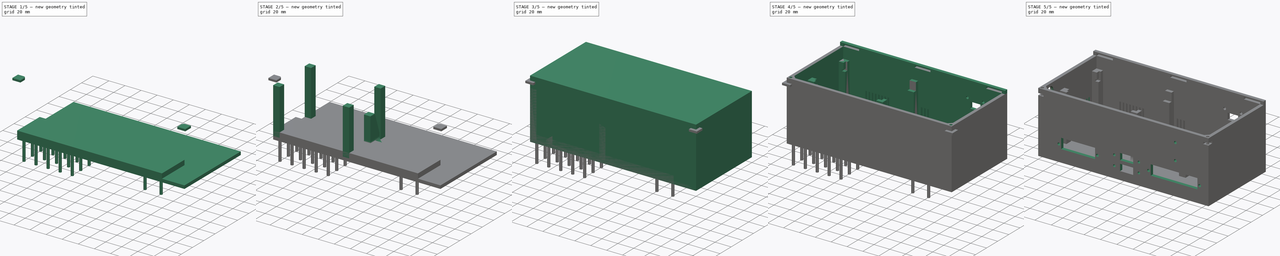
[diagram: build sequence overview — one tinted view per stage of 5, left to right]
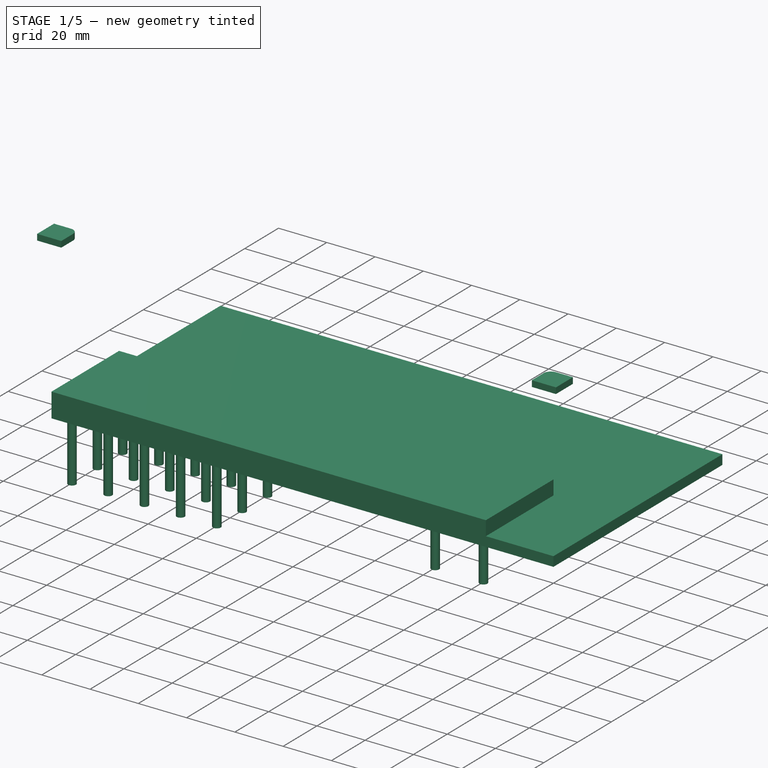
[diagram: stage 1 of 5 — iso view after this stage's code; geometry added in this stage tinted green]
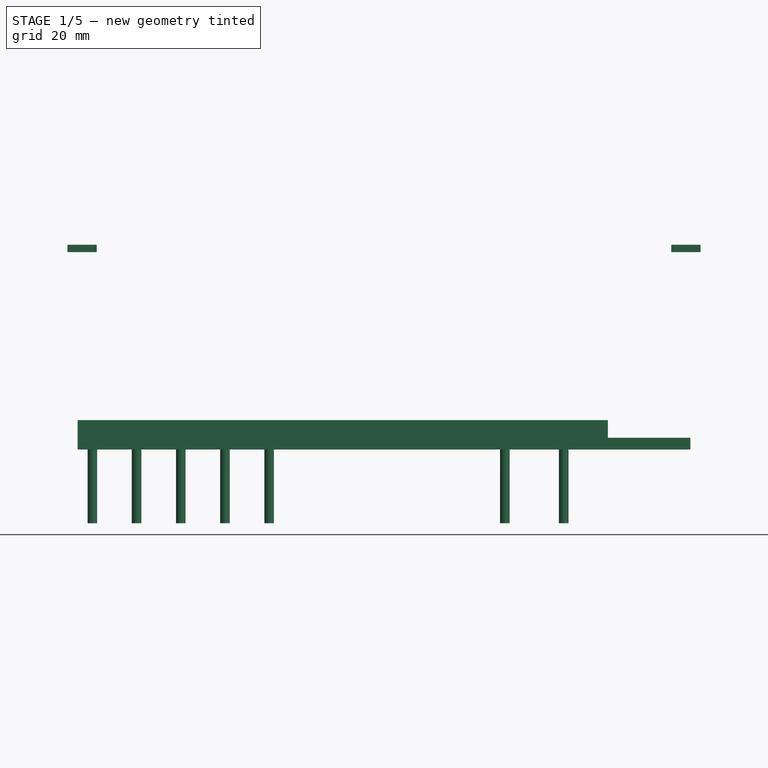
[diagram: stage 1 of 5 — front view after this stage's code; geometry added in this stage tinted green]
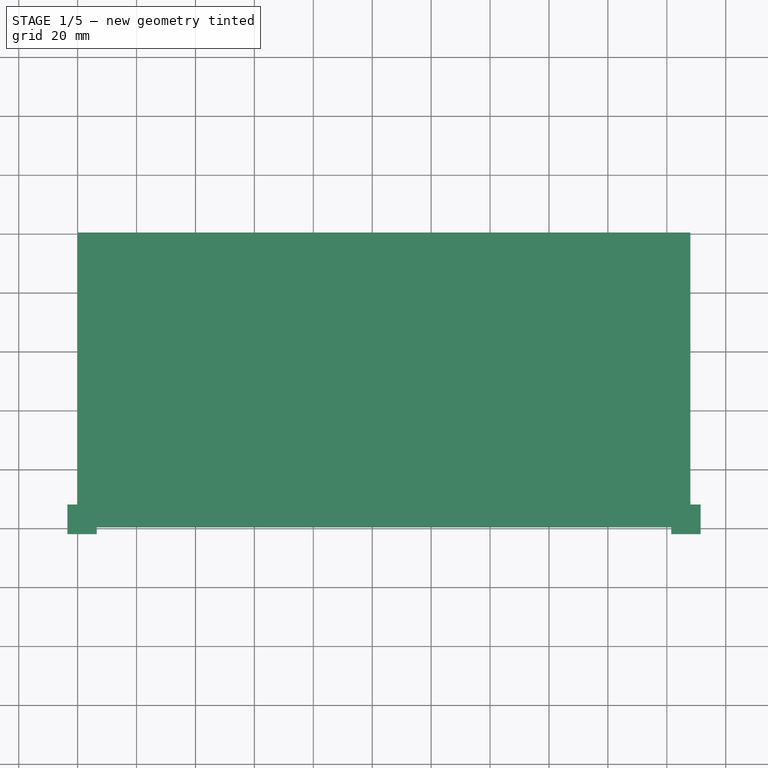
[diagram: stage 1 of 5 — top view after this stage's code; geometry added in this stage tinted green]
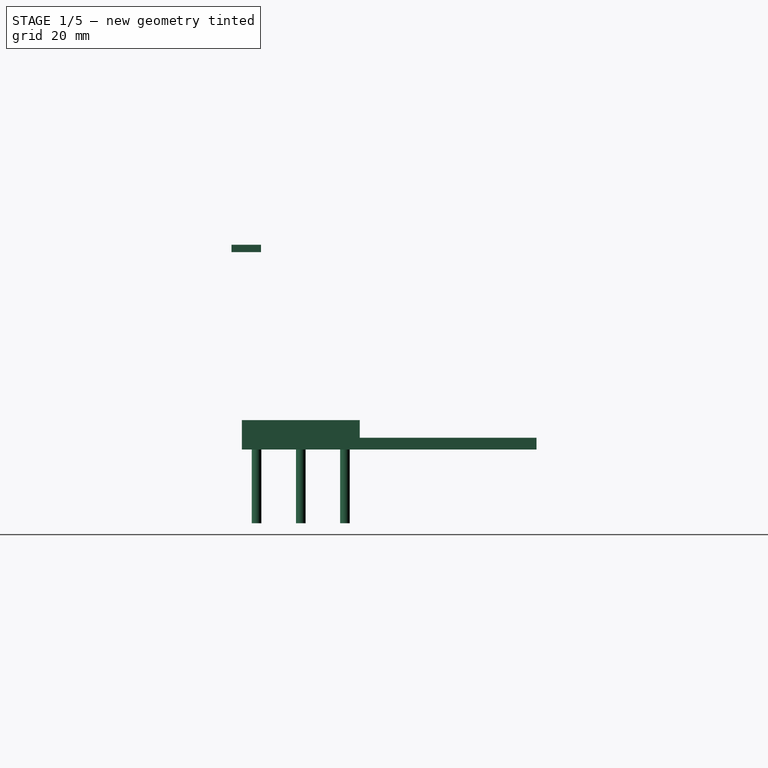
[diagram: stage 1 of 5 — right view after this stage's code; geometry added in this stage tinted green]
FCSTD DOCUMENT  (FreeCAD 0.21R33771 (Git))
Label: control-box-v.1.1
License: All rights reserved
LicenseURL: https://en.wikipedia.org/wiki/All_rights_reserved
objects: Sketcher::SketchObject×26, PartDesign::Pad×23, PartDesign::Body×11, Part::Cut×7, PartDesign::Pocket×2, PartDesign::Fillet×2, Part::MultiFuse×2, Part::Box×2, Part::Fillet×2, Spreadsheet::Sheet×1, PartDesign::Chamfer×1, Part::Fuse×1
note: 107 computed .brp shape members not serialized (recipe doc carries the construction recipe); baked Part::Feature solids carry a one-line shape summary decoded from their .brp

FEATURE [Sketcher::SketchObject] Sketch021
  FullyConstrained = true
  MapMode = 5
  Support = -> [XY_Plane009]
  expr: Constraints[10] = Spreadsheet.outerLength
  expr: Constraints[9] = Spreadsheet.outerWidth
  sketch-geometry (4):
    g0: LineSegment StartX=0 StartY=0 StartZ=0 EndX=208 EndY=0 EndZ=0
    g1: LineSegment StartX=208 StartY=0 StartZ=0 EndX=208 EndY=100 EndZ=0
    g2: LineSegment StartX=208 StartY=100 StartZ=0 EndX=0 EndY=100 EndZ=0
    g3: LineSegment StartX=0 StartY=100 StartZ=0 EndX=0 EndY=0 EndZ=0
  constraints (11):
    c: Coincident(g0,g1)
    c: Coincident(g1,g2)
    c: Coincident(g2,g3)
    c: Coincident(g3,g0)
    c: Horizontal(g0)
    c: Horizontal(g2)
    c: Vertical(g1)
    c: Vertical(g3)
    c: Coincident(g0,g-1)
    c: DistanceX(g2,g2) = 208
    c: DistanceY(g1,g1) = 100
FEATURE [PartDesign::Pad] Pad018
  Direction = (0,0,1)
  Length = 4
  Length2 = 10
  Profile = -> Sketch021
  ReferenceAxis = -> Sketch021 [N_Axis]
  Type = 0
  expr: Length = Spreadsheet.wallThickness
FEATURE [Sketcher::SketchObject] Sketch024
  FullyConstrained = true
  MapMode = 5
  Support = -> [XY_Plane010]
  sketch-geometry (4):
    g0: LineSegment StartX=0 StartY=0 StartZ=0 EndX=180 EndY=0 EndZ=0
    g1: LineSegment StartX=180 StartY=0 StartZ=0 EndX=180 EndY=40 EndZ=0
    g2: LineSegment StartX=180 StartY=40 StartZ=0 EndX=0 EndY=40 EndZ=0
    g3: LineSegment StartX=0 StartY=40 StartZ=0 EndX=0 EndY=0 EndZ=0
  constraints (11):
    c: Coincident(g0,g1)
    c: Coincident(g1,g2)
    c: Coincident(g2,g3)
    c: Coincident(g3,g0)
    c: Horizontal(g0)
    c: Horizontal(g2)
    c: Vertical(g1)
    c: Vertical(g3)
    c: Coincident(g0,g-1)
    c: DistanceY(g1,g1) = 40
    c: DistanceX(g2,g2) = 180
FEATURE [PartDesign::Pad] Pad021
  Direction = (0,0,1)
  Length = 10
  Length2 = 10
  Profile = -> Sketch024
  ReferenceAxis = -> Sketch024 [N_Axis]
  Type = 0
FEATURE [Sketcher::SketchObject] Sketch025
  FullyConstrained = true
  MapMode = 5
  Placement = pos=(0,0,0) rot=(1,0,0;3.14159rad)
  Support = -> [Pad021]
  expr: Constraints[24] = Spreadsheet.m3ScrewholeDiameter
  expr: Constraints[40] = Spreadsheet.m3ScrewholeDiameter
  expr: Constraints[5] = Spreadsheet.m3ScrewholeDiameter
  sketch-geometry (17):
    g0: Circle CenterX=20 CenterY=-20 CenterZ=0 NormalX=0 NormalY=0 NormalZ=1 AngleXU=0 Radius=1.625
    g1: Circle CenterX=35 CenterY=-20 CenterZ=0 NormalX=0 NormalY=0 NormalZ=1 AngleXU=0 Radius=1.625
    g2: Circle CenterX=50 CenterY=-20 CenterZ=0 NormalX=0 NormalY=0 NormalZ=1 AngleXU=0 Radius=1.625
    g3: Circle CenterX=65 CenterY=-20 CenterZ=0 NormalX=0 NormalY=0 NormalZ=1 AngleXU=0 Radius=1.625
    g4: Circle CenterX=145 CenterY=-20 CenterZ=0 NormalX=0 NormalY=0 NormalZ=1 AngleXU=0 Radius=1.625
    g5: Circle CenterX=165 CenterY=-20 CenterZ=0 NormalX=0 NormalY=0 NormalZ=1 AngleXU=0 Radius=1.625
    g6: Circle CenterX=5 CenterY=-20 CenterZ=0 NormalX=0 NormalY=0 NormalZ=1 AngleXU=0 Radius=1.625
    g7: Circle CenterX=5 CenterY=-35 CenterZ=0 NormalX=0 NormalY=0 NormalZ=1 AngleXU=0 Radius=1.625
    g8: Circle CenterX=20 CenterY=-35 CenterZ=0 NormalX=0 NormalY=0 NormalZ=1 AngleXU=0 Radius=1.625
    g9: Circle CenterX=35 CenterY=-35 CenterZ=0 NormalX=0 NormalY=0 NormalZ=1 AngleXU=0 Radius=1.625
    g10: Circle CenterX=50 CenterY=-35 CenterZ=0 NormalX=0 NormalY=0 NormalZ=1 AngleXU=0 Radius=1.625
    g11: Circle CenterX=65 CenterY=-35 CenterZ=0 NormalX=0 NormalY=0 NormalZ=1 AngleXU=0 Radius=1.625
    g12: Circle CenterX=5 CenterY=-5 CenterZ=0 NormalX=0 NormalY=0 NormalZ=1 AngleXU=0 Radius=1.625
    g13: Circle CenterX=20 CenterY=-5 CenterZ=0 NormalX=0 NormalY=0 NormalZ=1 AngleXU=0 Radius=1.625
    g14: Circle CenterX=35 CenterY=-5 CenterZ=0 NormalX=0 NormalY=0 NormalZ=1 AngleXU=0 Radius=1.625
    g15: Circle CenterX=50 CenterY=-5 CenterZ=0 NormalX=0 NormalY=0 NormalZ=1 AngleXU=0 Radius=1.625
    g16: Circle CenterX=65 CenterY=-5 CenterZ=0 NormalX=0 NormalY=0 NormalZ=1 AngleXU=0 Radius=1.625
  constraints (44):
    c: Equal(g0, g1-g5) x5
    c: Diameter(g0) = 3.25
    c: DistanceX(g0,g1) = 15
    c: DistanceX(g1,g2) = 15
    c: DistanceX(g2,g3) = 15
    c: DistanceY(g0,g1) = 0
    c: DistanceY(g1,g2) = 0
    c: DistanceY(g2,g3) = 0
    c: DistanceY(g4,g3) = 0
    c: DistanceY(g4,g5) = 0
    c: DistanceX(g4,g5) = 20
    c: DistanceX(g3,g4) = 80
    c: DistanceY(g0,g-1) = 20
    c: DistanceX(g6,g0) = 15
    c: DistanceX(g-1,g6) = 5
    c: Equal(g7,g8)
    c: Equal(g7,g6)
    c: Equal(g7,g9)
    c: Equal(g7,g10)
    c: Equal(g7,g11)
    c: Diameter(g7) = 3.25
    c: DistanceY(g7,g8) = 0
    c: DistanceY(g8,g9) = 0
    c: DistanceY(g9,g10) = 0
    c: DistanceY(g10,g11) = 0
    c: DistanceX(g7,g8) = 15
    c: DistanceX(g8,g9) = 15
    c: DistanceX(g9,g10) = 15
    c: DistanceX(g10,g11) = 15
    c: DistanceX(g6,g7) = 0
    c: DistanceY(g7,g6) = 15
    c: DistanceY(g0,g6) = 0
    c: Equal(g12, g13-g16) x4
    c: Diameter(g12) = 3.25
    c: DistanceY(g13,g12) = 0
    c: DistanceY(g13,g14) = 0
    c: DistanceY(g14,g15) = 0
    c: DistanceY(g16,g15) = 0
    c: DistanceY(g12,g-1) = 5
    c: DistanceX(g6,g12) = 0
    c: DistanceX(g12,g13) = 15
    c: DistanceX(g13,g14) = 15
    c: DistanceX(g14,g15) = 15
    c: DistanceX(g15,g16) = 15
FEATURE [PartDesign::Pad] Pad022
  BaseFeature = -> Pad021
  Direction = (0,0,-1)
  Length = 25
  Length2 = 10
  Profile = -> Sketch025
  ReferenceAxis = -> Sketch025 [N_Axis]
  Type = 0
FEATURE [Part::Box] Box  label="Cube"
  AttacherType = Attacher::AttachEngine3D
  Height = 2.5
  Length = 10
  Placement = pos=(-1.5,-4.5,73) rot=(0,0,1;0rad)
  Width = 10
  expr: Height = Spreadsheet.m3NutSlotHeight
FEATURE [Part::Box] Box001  label="Cube001"
  AttacherType = Attacher::AttachEngine3D
  Height = 2.5
  Length = 10
  Placement = pos=(201.5,-4,74.5) rot=(0,0,1;0rad)
  Width = 10
  expr: Height = Spreadsheet.m3NutSlotHeight
FEATURE [Part::Fillet] Fillet002
  Base = -> Box
  Edges = 1 edges r=3: [Edge7]
  Placement = pos=(-2,1,-6) rot=(0,0,1;0rad)
FEATURE [Part::Fillet] Fillet003
  Base = -> Box001
  Edges = 1 edges r=3: [Edge3]
  Placement = pos=(0,0.5,-7.5) rot=(0,0,1;0rad)
FEATURE [Part::MultiFuse] Fusion002
  Shapes = -> [Fillet002,Fillet003]
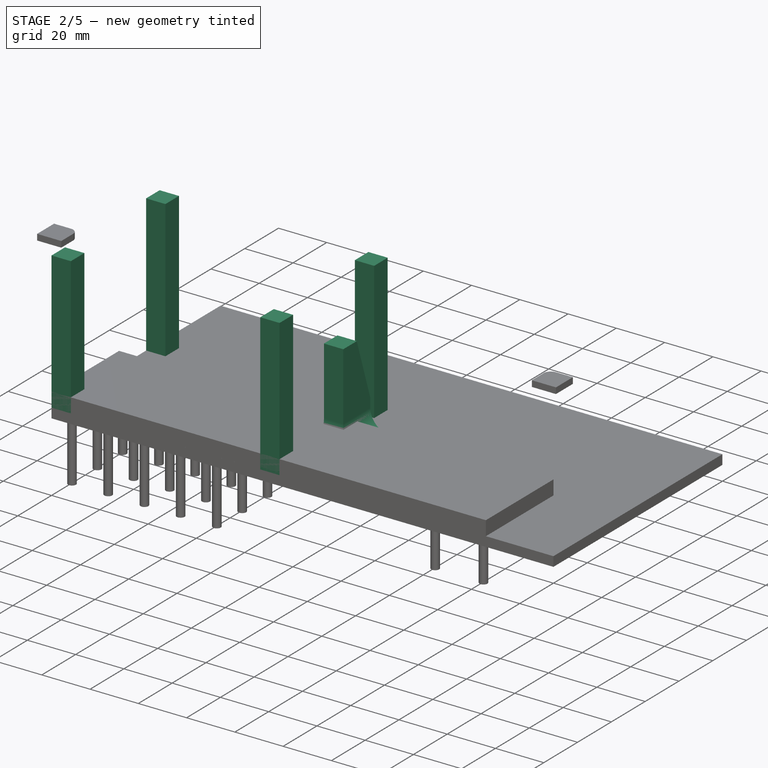
[diagram: stage 2 of 5 — iso view after this stage's code; geometry added in this stage tinted green]
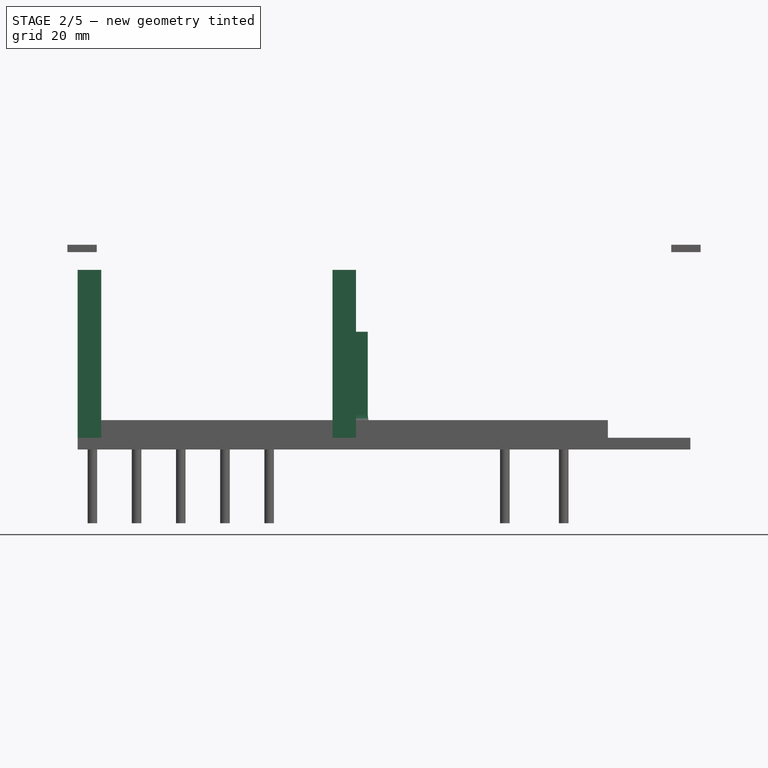
[diagram: stage 2 of 5 — front view after this stage's code; geometry added in this stage tinted green]
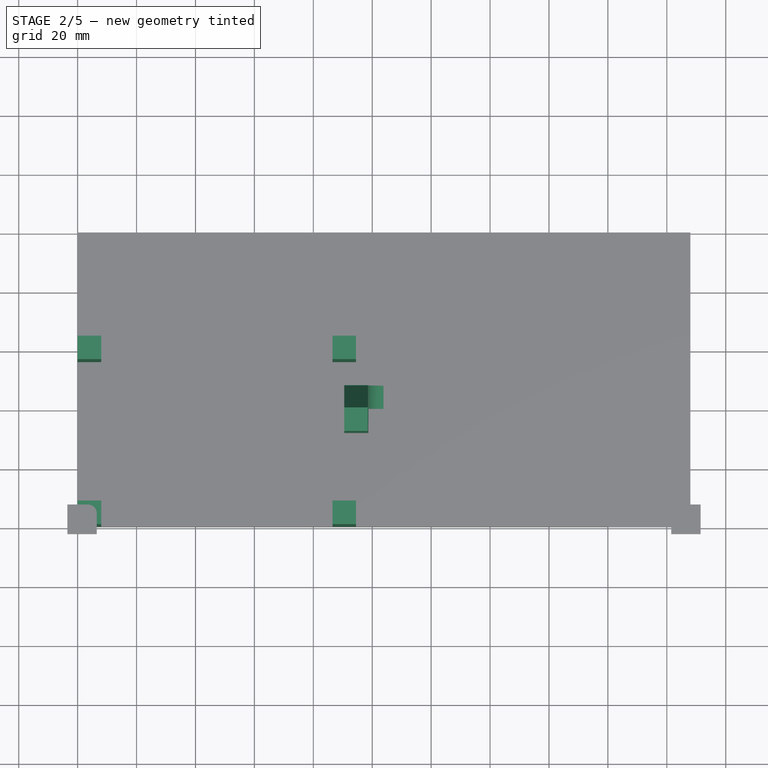
[diagram: stage 2 of 5 — top view after this stage's code; geometry added in this stage tinted green]
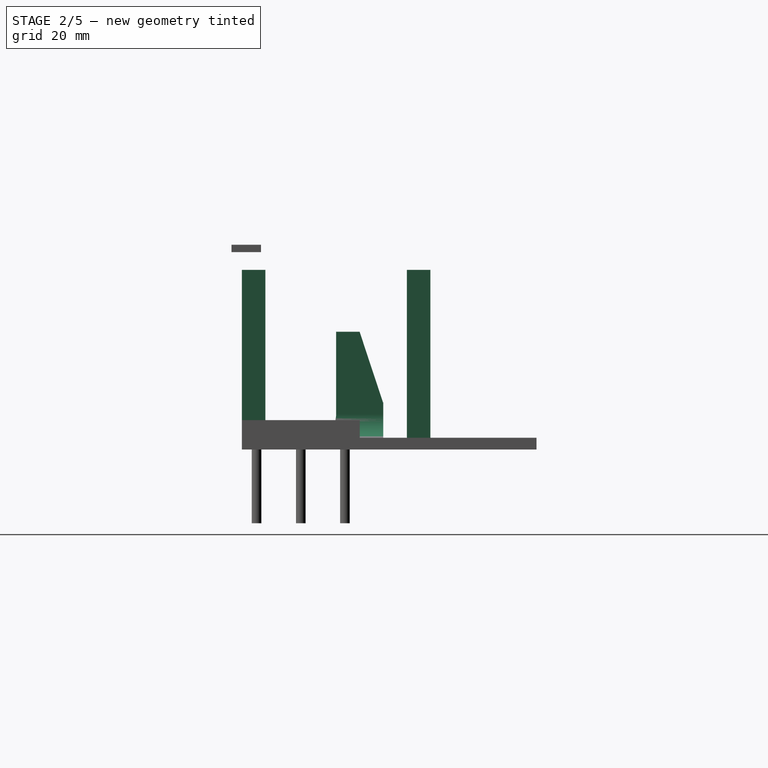
[diagram: stage 2 of 5 — right view after this stage's code; geometry added in this stage tinted green]
FEATURE [Sketcher::SketchObject] Sketch002
  FullyConstrained = true
  MapMode = 5
  Support = -> [XY_Plane002]
  expr: Constraints[10] = Spreadsheet.piLength + Spreadsheet.wallThickness * 2
  expr: Constraints[11] = Spreadsheet.piWidth + Spreadsheet.wallThickness * 2
  sketch-geometry (4):
    g0: LineSegment StartX=94.5 StartY=0 StartZ=0 EndX=0 EndY=0 EndZ=0
    g1: LineSegment StartX=94.5 StartY=64 StartZ=0 EndX=94.5 EndY=0 EndZ=0
    g2: LineSegment StartX=94.5 StartY=64 StartZ=0 EndX=0 EndY=64 EndZ=0
    g3: LineSegment StartX=0 StartY=64 StartZ=0 EndX=0 EndY=0 EndZ=0
  constraints (12):
    c: Horizontal(g0)
    c: Vertical(g1)
    c: PointOnObject(g0,g-2)
    c: PointOnObject(g0,g-1)
    c: Coincident(g0,g1)
    c: Coincident(g1,g2)
    c: PointOnObject(g2,g-2)
    c: Horizontal(g2)
    c: Coincident(g2,g3)
    c: Coincident(g3,g0)
    c: DistanceY(g3,g3) = 64
    c: DistanceX(g2,g2) = 94.5
FEATURE [PartDesign::Pad] Pad002
  Direction = (0,0,1)
  Length = 4
  Length2 = 10
  Profile = -> Sketch002
  ReferenceAxis = -> Sketch002 [N_Axis]
  Type = 0
  expr: Length = Spreadsheet.wallThickness
FEATURE [Sketcher::SketchObject] Sketch003
  FullyConstrained = true
  MapMode = 5
  Placement = pos=(0,0,4) rot=(0,0,1;0rad)
  Support = -> [Pad002]
  expr: Constraints[42] = Spreadsheet.wallThickness * 2
  expr: Constraints[43] = Spreadsheet.piWidth + Spreadsheet.wallThickness * 2
  expr: Constraints[44] = Spreadsheet.piLength + Spreadsheet.wallThickness * 2
  sketch-geometry (16):
    g0: LineSegment StartX=0 StartY=0 StartZ=0 EndX=8 EndY=0 EndZ=0
    g1: LineSegment StartX=8 StartY=0 StartZ=0 EndX=8 EndY=8 EndZ=0
    g2: LineSegment StartX=8 StartY=8 StartZ=0 EndX=0 EndY=8 EndZ=0
    g3: LineSegment StartX=0 StartY=8 StartZ=0 EndX=0 EndY=0 EndZ=0
    g4: LineSegment StartX=0 StartY=64 StartZ=0 EndX=8 EndY=64 EndZ=0
    g5: LineSegment StartX=8 StartY=64 StartZ=0 EndX=8 EndY=56 EndZ=0
    g6: LineSegment StartX=8 StartY=56 StartZ=0 EndX=0 EndY=56 EndZ=0
    g7: LineSegment StartX=0 StartY=56 StartZ=0 EndX=0 EndY=64 EndZ=0
    g8: LineSegment StartX=94.5 StartY=64 StartZ=0 EndX=86.5 EndY=64 EndZ=0
    g9: LineSegment StartX=86.5 StartY=64 StartZ=0 EndX=86.5 EndY=56 EndZ=0
    g10: LineSegment StartX=86.5 StartY=56 StartZ=0 EndX=94.5 EndY=56 EndZ=0
    g11: LineSegment StartX=94.5 StartY=56 StartZ=0 EndX=94.5 EndY=64 EndZ=0
    g12: LineSegment StartX=94.5 StartY=0 StartZ=0 EndX=86.5 EndY=0 EndZ=0
    g13: LineSegment StartX=86.5 StartY=0 StartZ=0 EndX=86.5 EndY=8 EndZ=0
    g14: LineSegment StartX=86.5 StartY=8 StartZ=0 EndX=94.5 EndY=8 EndZ=0
    g15: LineSegment StartX=94.5 StartY=8 StartZ=0 EndX=94.5 EndY=0 EndZ=0
  constraints (47):
    c: Coincident(g0,g1)
    c: Coincident(g1,g2)
    c: Coincident(g2,g3)
    c: Coincident(g3,g0)
    c: Horizontal(g0)
    c: Horizontal(g2)
    c: Vertical(g1)
    c: Vertical(g3)
    c: Coincident(g0,g-1)
    c: Coincident(g4,g5)
    c: Coincident(g5,g6)
    c: Coincident(g6,g7)
    c: Coincident(g7,g4)
    c: Horizontal(g4)
    c: Horizontal(g6)
    c: Vertical(g5)
    c: Vertical(g7)
    c: PointOnObject(g4,g-2)
    c: Coincident(g8,g9)
    c: Coincident(g9,g10)
    c: Coincident(g10,g11)
    c: Coincident(g11,g8)
    c: Horizontal(g8)
    c: Horizontal(g10)
    c: Vertical(g9)
    c: Vertical(g11)
    c: Coincident(g12,g13)
    c: Coincident(g13,g14)
    c: Coincident(g14,g15)
    c: Coincident(g15,g12)
    c: Horizontal(g12)
    c: Horizontal(g14)
    c: Vertical(g13)
    c: Vertical(g15)
    c: PointOnObject(g12,g-1)
    c: Equal(g3,g0)
    c: Equal(g0,g7)
    c: Equal(g7,g4)
    c: Equal(g4,g8)
    c: Equal(g8,g11)
    c: Equal(g11,g12)
    c: Equal(g12,g15)
    c: Distance(g3) = 8
    c: DistanceX(g0,g12) = 94.5
    c: DistanceY(g0,g4) = 64
    c: DistanceY(g4,g8) = 0
    c: DistanceX(g8,g12) = 0
FEATURE [PartDesign::Pad] Pad003
  BaseFeature = -> Pad002
  Direction = (0,0,1)
  Length = 57
  Length2 = 10
  Profile = -> Sketch003
  ReferenceAxis = -> Sketch003 [N_Axis]
  Type = 0
  expr: Length = Spreadsheet.piSupportHeight
FEATURE [PartDesign::Body] Body002  label="Pi Supports"
  Group = -> [Sketch002,Pad002,Sketch003,Pad003,Sketch004,Pocket,Sketch017,Pad016]
  Origin = -> Origin002
  Placement = pos=(4,32,0) rot=(0,0,1;0rad)
  Tip = -> Pad016
  expr: .Placement.Base.x = Spreadsheet.wallThickness
  expr: .Placement.Base.y = Spreadsheet.outerLength - Spreadsheet.piLength - Spreadsheet.wallThickness * 3
FEATURE [Sketcher::SketchObject] Sketch018
  FullyConstrained = true
  MapMode = 5
  Support = -> [XY_Plane008]
  expr: Constraints[10] = Spreadsheet.wallThickness
  expr: Constraints[11] = Spreadsheet.outerLength - Spreadsheet.wallThickness
  expr: Constraints[9] = Spreadsheet.outerWidth
  sketch-geometry (4):
    g0: LineSegment StartX=0 StartY=96 StartZ=0 EndX=208 EndY=96 EndZ=0
    g1: LineSegment StartX=208 StartY=96 StartZ=0 EndX=208 EndY=100 EndZ=0
    g2: LineSegment StartX=208 StartY=100 StartZ=0 EndX=0 EndY=100 EndZ=0
    g3: LineSegment StartX=0 StartY=100 StartZ=0 EndX=0 EndY=96 EndZ=0
  constraints (12):
    c: Coincident(g0,g1)
    c: Coincident(g1,g2)
    c: Coincident(g2,g3)
    c: Coincident(g3,g0)
    c: Horizontal(g0)
    c: Horizontal(g2)
    c: Vertical(g1)
    c: Vertical(g3)
    c: PointOnObject(g0,g-2)
    c: DistanceX(g2,g2) = 208
    c: DistanceY(g3,g3) = 4
    c: DistanceY(g-1,g0) = 96
FEATURE [PartDesign::Pad] Pad017
  Direction = (0,0,1)
  Length = 4
  Length2 = 10
  Profile = -> Sketch018
  ReferenceAxis = -> Sketch018 [N_Axis]
  Type = 0
  expr: Length = Spreadsheet.wallThickness
FEATURE [Sketcher::SketchObject] Sketch019
  FullyConstrained = true
  MapMode = 5
  Placement = pos=(0,96,0) rot=(1,0,0;1.5708rad)
  Support = -> [Pad017]
FEATURE [Sketcher::SketchObject] Sketch020
  FullyConstrained = true
  MapMode = 5
  Placement = pos=(0,96,0) rot=(1,0,0;1.5708rad)
  Support = -> [Pad017]
  expr: Constraints[26] = Spreadsheet.lidTabWidth
  expr: Constraints[27] = Spreadsheet.wallThickness
  expr: Constraints[28] = Spreadsheet.lidTabSpacing
  expr: Constraints[29] = Spreadsheet.lidTabSpacing
  expr: Constraints[32] = Spreadsheet.wallThickness / 2
  sketch-geometry (12):
    g0: LineSegment StartX=4 StartY=2 StartZ=0 EndX=24 EndY=2 EndZ=0
    g1: LineSegment StartX=24 StartY=2 StartZ=0 EndX=24 EndY=0 EndZ=0
    g2: LineSegment StartX=24 StartY=0 StartZ=0 EndX=4 EndY=0 EndZ=0
    g3: LineSegment StartX=4 StartY=0 StartZ=0 EndX=4 EndY=2 EndZ=0
    g4: LineSegment StartX=94 StartY=2 StartZ=0 EndX=114 EndY=2 EndZ=0
    g5: LineSegment StartX=114 StartY=2 StartZ=0 EndX=114 EndY=0 EndZ=0
    g6: LineSegment StartX=114 StartY=0 StartZ=0 EndX=94 EndY=0 EndZ=0
    g7: LineSegment StartX=94 StartY=0 StartZ=0 EndX=94 EndY=2 EndZ=0
    g8: LineSegment StartX=184 StartY=2 StartZ=0 EndX=204 EndY=2 EndZ=0
    g9: LineSegment StartX=204 StartY=2 StartZ=0 EndX=204 EndY=0 EndZ=0
    g10: LineSegment StartX=204 StartY=0 StartZ=0 EndX=184 EndY=0 EndZ=0
    g11: LineSegment StartX=184 StartY=0 StartZ=0 EndX=184 EndY=2 EndZ=0
  constraints (36):
    c: Coincident(g0,g1)
    c: Coincident(g1,g2)
    c: Coincident(g2,g3)
    c: Coincident(g3,g0)
    c: Horizontal(g0)
    c: Horizontal(g2)
    c: Vertical(g1)
    c: Vertical(g3)
    c: Coincident(g4,g5)
    c: Coincident(g5,g6)
    c: Coincident(g6,g7)
    c: Coincident(g7,g4)
    c: Horizontal(g4)
    c: Horizontal(g6)
    c: Vertical(g5)
    c: Vertical(g7)
    c: Coincident(g8,g9)
    c: Coincident(g9,g10)
    c: Coincident(g10,g11)
    c: Coincident(g11,g8)
    c: Horizontal(g8)
    c: Horizontal(g10)
    c: Vertical(g9)
    c: Vertical(g11)
    c: Equal(g0,g4)
    c: Equal(g4,g8)
    c: DistanceX(g0,g0) = 20
    c: DistanceX(g-1,g2) = 4
    c: DistanceX(g0,g4) = 70
    c: DistanceX(g4,g8) = 70
    c: Equal(g3,g7)
    c: Equal(g7,g11)
    c: DistanceY(g3,g3) = 2
    c: DistanceY(g-1,g2) = 0
    c: DistanceY(g1,g6) = 0
    c: DistanceY(g5,g10) = 0
FEATURE [PartDesign::Pocket] Pocket001
  BaseFeature = -> Pad017
  Direction = (0,1,-2e-16)
  Length = 2
  Length2 = 5
  Profile = -> Sketch020
  ReferenceAxis = -> Sketch020 [N_Axis]
  Type = 2
  expr: Length = Spreadsheet.wallThickness / 2
FEATURE [PartDesign::Fillet] Fillet
  Base = -> Pocket001 [Edge3,Edge7,Edge11]
  BaseFeature = -> Pocket001
  Radius = 0.5
  SupportTransform = false
  UseAllEdges = false
FEATURE [Sketcher::SketchObject] Sketch022
  FullyConstrained = true
  MapMode = 5
  Placement = pos=(0,0,4) rot=(0,0,1;0rad)
  Support = -> [Pad018]
  expr: Constraints[10] = Spreadsheet.outerLength - Spreadsheet.piLength - Spreadsheet.wallThickness * 3
  expr: Constraints[8] = Spreadsheet.wallThickness * 2
  expr: Constraints[9] = Spreadsheet.piWidth + Spreadsheet.wallThickness
  sketch-geometry (4):
    g0: LineSegment StartX=90.5 StartY=48 StartZ=0 EndX=98.5 EndY=48 EndZ=0
    g1: LineSegment StartX=98.5 StartY=48 StartZ=0 EndX=98.5 EndY=32 EndZ=0
    g2: LineSegment StartX=98.5 StartY=32 StartZ=0 EndX=90.5 EndY=32 EndZ=0
    g3: LineSegment StartX=90.5 StartY=32 StartZ=0 EndX=90.5 EndY=48 EndZ=0
  constraints (12):
    c: Coincident(g0,g1)
    c: Coincident(g1,g2)
    c: Coincident(g2,g3)
    c: Coincident(g3,g0)
    c: Horizontal(g0)
    c: Horizontal(g2)
    c: Vertical(g1)
    c: Vertical(g3)
    c: DistanceX(g0,g0) = 8
    c: DistanceX(g-1,g2) = 90.5
    c: DistanceY(g-1,g2) = 32
    c: DistanceY(g1,g1) = 16
FEATURE [PartDesign::Pad] Pad019
  BaseFeature = -> Pad018
  Direction = (0,0,1)
  Length = 12
  Length2 = 10
  Profile = -> Sketch022
  ReferenceAxis = -> Sketch022 [N_Axis]
  Type = 0
  expr: Length = Spreadsheet.wallThickness * 3
FEATURE [PartDesign::Fillet] Fillet001
  Base = -> Pad019 [Edge15,Edge14]
  BaseFeature = -> Pad019
  Radius = 8
  SupportTransform = false
  UseAllEdges = false
  expr: Radius = Spreadsheet.wallThickness * 2
FEATURE [Sketcher::SketchObject] Sketch023
  FullyConstrained = true
  MapMode = 5
  Placement = pos=(0,0,16) rot=(0,0,1;0rad)
  Support = -> [Fillet001]
  expr: Constraints[10] = Spreadsheet.piWidth + Spreadsheet.wallThickness
  expr: Constraints[11] = Spreadsheet.outerLength - Spreadsheet.piLength - Spreadsheet.wallThickness * 3
  expr: Constraints[9] = Spreadsheet.wallThickness * 2
  sketch-geometry (4):
    g0: LineSegment StartX=90.5 StartY=32 StartZ=0 EndX=98.5 EndY=32 EndZ=0
    g1: LineSegment StartX=98.5 StartY=32 StartZ=0 EndX=98.5 EndY=40 EndZ=0
    g2: LineSegment StartX=98.5 StartY=40 StartZ=0 EndX=90.5 EndY=40 EndZ=0
    g3: LineSegment StartX=90.5 StartY=40 StartZ=0 EndX=90.5 EndY=32 EndZ=0
  constraints (12):
    c: Coincident(g0,g1)
    c: Coincident(g1,g2)
    c: Coincident(g2,g3)
    c: Coincident(g3,g0)
    c: Horizontal(g0)
    c: Horizontal(g2)
    c: Vertical(g1)
    c: Vertical(g3)
    c: Equal(g1,g2)
    c: DistanceY(g1,g1) = 8
    c: DistanceX(g-1,g0) = 90.5
    c: DistanceY(g-1,g0) = 32
FEATURE [PartDesign::Pad] Pad020
  BaseFeature = -> Fillet001
  Direction = (0,0,1)
  Length = 24
  Length2 = 10
  Profile = -> Sketch023
  ReferenceAxis = -> Sketch023 [N_Axis]
  Type = 0
  expr: Length = Spreadsheet.wallThickness * 6
FEATURE [PartDesign::Chamfer] Chamfer
  Angle = 45
  Base = -> Pad020 [Edge33]
  BaseFeature = -> Pad020
  ChamferType = 1
  FlipDirection = false
  Size = 7.9
  Size2 = 23.9
  SupportTransform = false
  UseAllEdges = false
  expr: Size = Spreadsheet.wallThickness * 2 - 0.1
  expr: Size2 = Spreadsheet.wallThickness * 6 - 0.1
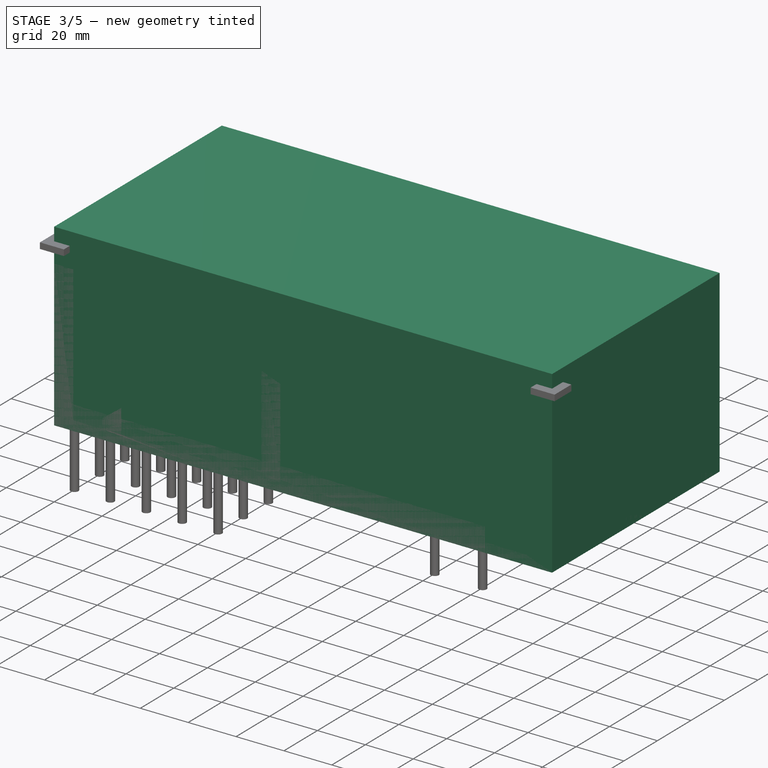
[diagram: stage 3 of 5 — iso view after this stage's code; geometry added in this stage tinted green]
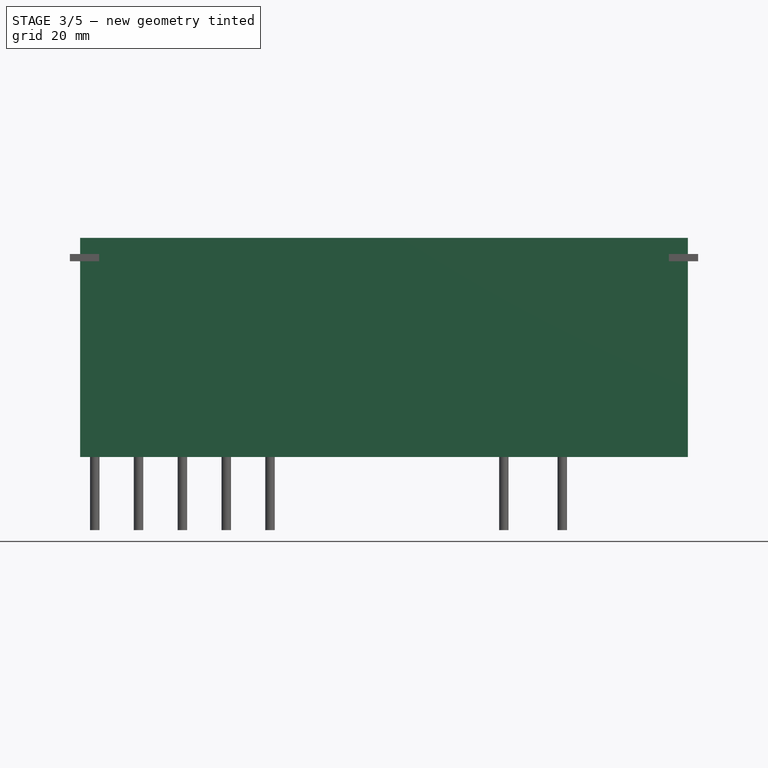
[diagram: stage 3 of 5 — front view after this stage's code; geometry added in this stage tinted green]
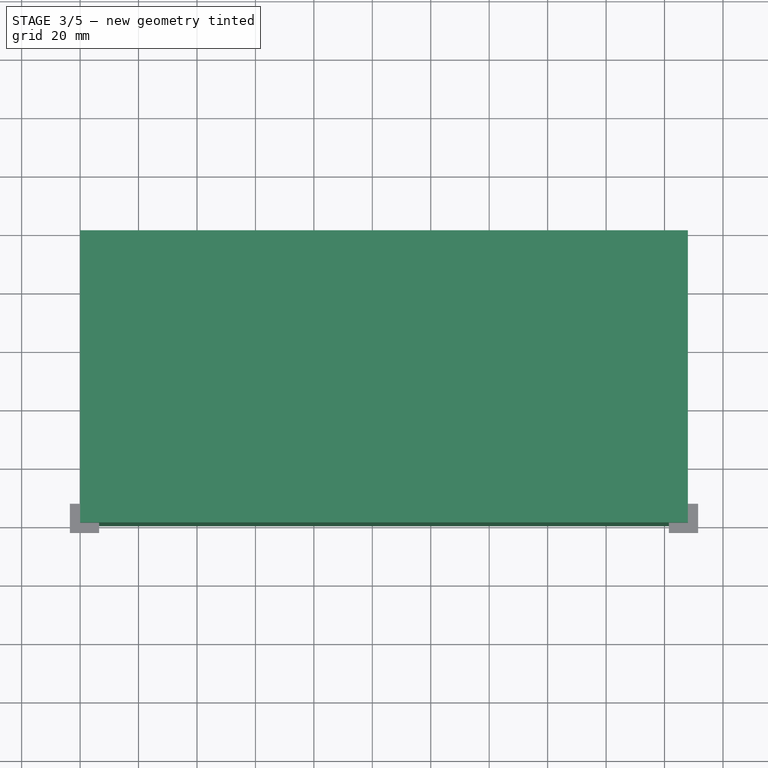
[diagram: stage 3 of 5 — top view after this stage's code; geometry added in this stage tinted green]
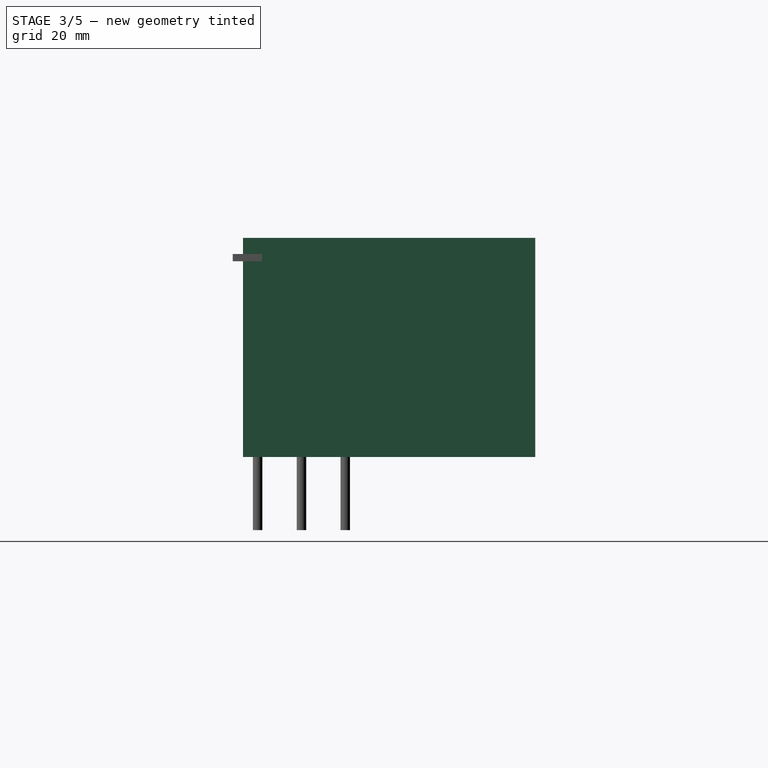
[diagram: stage 3 of 5 — right view after this stage's code; geometry added in this stage tinted green]
FEATURE [Sketcher::SketchObject] Sketch
  FullyConstrained = true
  MapMode = 5
  Support = -> [XY_Plane]
  expr: .Constraints.controlBoxDepth = Spreadsheet.outerLength
  expr: Constraints[9] = Spreadsheet.outerWidth
  sketch-geometry (4):
    g0: LineSegment StartX=0 StartY=100 StartZ=0 EndX=208 EndY=100 EndZ=0
    g1: LineSegment StartX=208 StartY=100 StartZ=0 EndX=208 EndY=0 EndZ=0
    g2: LineSegment StartX=208 StartY=0 StartZ=0 EndX=0 EndY=0 EndZ=0
    g3: LineSegment StartX=0 StartY=0 StartZ=0 EndX=0 EndY=100 EndZ=0
  constraints (11):
    c: Coincident(g0,g1)
    c: Coincident(g1,g2)
    c: Coincident(g2,g3)
    c: Coincident(g3,g0)
    c: Horizontal(g0)
    c: Horizontal(g2)
    c: Vertical(g1)
    c: Vertical(g3)
    c: DistanceY(g3,g3) = 100  'controlBoxDepth'
    c: DistanceX(g2,g2) = 208
    c: Coincident(g-1,g2)
FEATURE [Spreadsheet::Sheet] Spreadsheet  label="Distances"
  cells = B2='Main Box; B3='outerLength; C3(outerLength)=100; B4='outerWidth; C4(outerWidth)=208; B5='outerHeight; C5(outerHeight)=75; B7='Lid; B8='lidTabWidth; C8(lidTabWidth)=20; B9='lidTabSpacing; C9(lidTabSpacing)==(outerWidth - 2 * wallThickness - lidNumTabs * lidTabWidth) / (lidNumTabs - 1); B10='lidNumTabs; C10(lidNumTabs)=3; B12='Global Params; B13='wallThickness; C13(wallThickness)=4; B14='m3ScrewholeDiameter; C14(m3ScrewholeDiameter)=3.25; B15='m3NutSlotHeight; C15(m3NutSlotHeight)==2.5 mm; B16='m3NutSlotRadius; C16(m3NutSlotRadius)==3 mm; B17='ventHoleWidth; C17(ventHoleWidth)=2; B18='ventHoleSpacing; C18(ventHoleSpacing)=2; B19='ventHoleHeight; C19(ventHoleHeight)==24 mm; B21='Pi / SBC; B22='piSupportHeight; C22(piSupportHeight)=57; B23='piLength; C23(piLength)=56; B24='piWidth; C24(piWidth)=86.5; B26='Arduino; B27='arduinoSupportHeight; C27(arduinoSupportHeight)=4; B28='arduinoLength; C28(arduinoLength)=53; B29='arduinoWidth; C29(arduinoWidth)=68.5; B31='Front Cuts; B32='phoenixScrewholeDistance; C32(phoenixScrewholeDistance)=2.75; B34='Left Side Cuts; B35='buttonDiameter; C35(buttonDiameter)=11.5; B38='Rear Cuts; B39='powerPlugDiameter; C39(powerPlugDiameter)=11; B40='phoenix2xWidth; C40(phoenix2xWidth)=13; B41='phoenix2xHeight; C41(phoenix2xHeight)=8; B42='phoenix2xScrewDistanceX; C42(phoenix2xScrewDistanceX)=3.5; B43='phoenix2xScrewDistanceY; C43(phoenix2xScrewDistanceY)=3.5
FEATURE [PartDesign::Pad] Pad
  Direction = (0,0,1)
  Length = 75
  Length2 = 10
  Profile = -> Sketch
  ReferenceAxis = -> Sketch [N_Axis]
  Type = 0
  expr: Length = Spreadsheet.outerHeight
FEATURE [PartDesign::Body] Body  label="Outer Box"
  Base_controlBoxHeight = 75
  Group = -> [Sketch,Pad]
  Origin = -> Origin
  Tip = -> Pad
FEATURE [Sketcher::SketchObject] Sketch001
  FullyConstrained = true
  MapMode = 5
  Support = -> [XY_Plane001]
  expr: Constraints[16] = Spreadsheet.outerWidth - Spreadsheet.wallThickness * 2
  expr: Constraints[17] = Spreadsheet.outerLength - Spreadsheet.wallThickness * 2
  sketch-geometry (6):
    g0: LineSegment StartX=0 StartY=92 StartZ=0 EndX=200 EndY=92 EndZ=0
    g1: LineSegment StartX=200 StartY=92 StartZ=0 EndX=200 EndY=4 EndZ=0
    g2: LineSegment StartX=196 StartY=0 StartZ=0 EndX=4 EndY=0 EndZ=0
    g3: LineSegment StartX=0 StartY=4 StartZ=0 EndX=0 EndY=92 EndZ=0
    g4: LineSegment StartX=4 StartY=0 StartZ=0 EndX=0 EndY=4 EndZ=0
    g5: LineSegment StartX=196 StartY=0 StartZ=0 EndX=200 EndY=4 EndZ=0
  constraints (18):
    c: Coincident(g0,g1)
    c: Coincident(g3,g0)
    c: Horizontal(g0)
    c: Horizontal(g2)
    c: Vertical(g1)
    c: Vertical(g3)
    c: DistanceX(g-1,g4) = 4
    c: DistanceY(g-1,g4) = 4
    c: Coincident(g2,g4)
    c: Coincident(g3,g4)
    c: PointOnObject(g2,g-1)
    c: PointOnObject(g3,g-2)
    c: DistanceX(g-1,g5) = 196
    c: DistanceY(g-1,g5) = 4
    c: Coincident(g1,g5)
    c: Coincident(g2,g5)
    c: DistanceX(g-1,g1) = 200
    c: DistanceY(g-1,g0) = 92
FEATURE [PartDesign::Pad] Pad001
  Direction = (0,0,1)
  Length = 71
  Length2 = 10
  Profile = -> Sketch001
  ReferenceAxis = -> Sketch001 [N_Axis]
  Type = 0
  expr: Length = Spreadsheet.outerHeight - Spreadsheet.wallThickness
FEATURE [Sketcher::SketchObject] Sketch004
  FullyConstrained = true
  MapMode = 5
  Placement = pos=(0,0,61) rot=(0,0,1;0rad)
  Support = -> [Pad003]
  expr: Constraints[35] = Spreadsheet.wallThickness
  expr: Constraints[39] = Spreadsheet.piWidth
  expr: Constraints[40] = Spreadsheet.piLength
  expr: Constraints[41] = Spreadsheet.wallThickness
  expr: Constraints[42] = Spreadsheet.wallThickness
  expr: Constraints[44] = Spreadsheet.wallThickness * 2
  sketch-geometry (16):
    g0: LineSegment StartX=8 StartY=8 StartZ=0 EndX=4 EndY=8 EndZ=0
    g1: LineSegment StartX=4 StartY=8 StartZ=0 EndX=4 EndY=4 EndZ=0
    g2: LineSegment StartX=4 StartY=4 StartZ=0 EndX=8 EndY=4 EndZ=0
    g3: LineSegment StartX=8 StartY=4 StartZ=0 EndX=8 EndY=8 EndZ=0
    g4: LineSegment StartX=86.5 StartY=8 StartZ=0 EndX=90.5 EndY=8 EndZ=0
    g5: LineSegment StartX=90.5 StartY=8 StartZ=0 EndX=90.5 EndY=4 EndZ=0
    g6: LineSegment StartX=90.5 StartY=4 StartZ=0 EndX=86.5 EndY=4 EndZ=0
    g7: LineSegment StartX=86.5 StartY=4 StartZ=0 EndX=86.5 EndY=8 EndZ=0
    g8: LineSegment StartX=8 StartY=56 StartZ=0 EndX=4 EndY=56 EndZ=0
    g9: LineSegment StartX=4 StartY=56 StartZ=0 EndX=4 EndY=60 EndZ=0
    g10: LineSegment StartX=4 StartY=60 StartZ=0 EndX=8 EndY=60 EndZ=0
    g11: LineSegment StartX=8 StartY=60 StartZ=0 EndX=8 EndY=56 EndZ=0
    g12: LineSegment StartX=86.5 StartY=56 StartZ=0 EndX=94.5 EndY=56 EndZ=0
    g13: LineSegment StartX=94.5 StartY=56 StartZ=0 EndX=94.5 EndY=60 EndZ=0
    g14: LineSegment StartX=94.5 StartY=60 StartZ=0 EndX=86.5 EndY=60 EndZ=0
    g15: LineSegment StartX=86.5 StartY=60 StartZ=0 EndX=86.5 EndY=56 EndZ=0
  constraints (48):
    c: Coincident(g0,g1)
    c: Coincident(g1,g2)
    c: Coincident(g2,g3)
    c: Coincident(g3,g0)
    c: Horizontal(g0)
    c: Horizontal(g2)
    c: Vertical(g1)
    c: Vertical(g3)
    c: Coincident(g4,g5)
    c: Coincident(g5,g6)
    c: Coincident(g6,g7)
    c: Coincident(g7,g4)
    c: Horizontal(g4)
    c: Horizontal(g6)
    c: Vertical(g5)
    c: Vertical(g7)
    c: Coincident(g8,g9)
    c: Coincident(g9,g10)
    c: Coincident(g10,g11)
    c: Coincident(g11,g8)
    c: Horizontal(g8)
    c: Horizontal(g10)
    c: Vertical(g9)
    c: Vertical(g11)
    c: Coincident(g12,g13)
    c: Coincident(g13,g14)
    c: Coincident(g14,g15)
    c: Coincident(g15,g12)
    c: Horizontal(g12)
    c: Horizontal(g14)
    c: Vertical(g13)
    c: Vertical(g15)
    c: Equal(g2,g1)
    c: Equal(g1,g9)
    c: Equal(g9,g10)
    c: Distance(g2) = 4
    c: DistanceX(g1,g9) = 0
    c: DistanceY(g5,g1) = 0
    c: DistanceY(g9,g13) = 0
    c: DistanceX(g1,g5) = 86.5
    c: DistanceY(g1,g9) = 56
    c: DistanceY(g-1,g1) = 4
    c: DistanceX(g-1,g1) = 4
    c: DistanceX(g4,g12) = 0
    c: DistanceX(g14,g14) = 8
    c: Equal(g15,g10)
    c: Equal(g6,g5)
    c: Equal(g5,g0)
FEATURE [PartDesign::Pocket] Pocket
  BaseFeature = -> Pad003
  Direction = (0,0,-1)
  Length = 10
  Length2 = 5
  Profile = -> Sketch004
  ReferenceAxis = -> Sketch004 [N_Axis]
  Type = 0
FEATURE [Sketcher::SketchObject] Sketch005
  FullyConstrained = true
  MapMode = 5
  Support = -> [XY_Plane003]
  expr: Constraints[10] = Spreadsheet.arduinoWidth + Spreadsheet.wallThickness * 2
  expr: Constraints[9] = Spreadsheet.arduinoLength + Spreadsheet.wallThickness * 2
  sketch-geometry (4):
    g0: LineSegment StartX=0 StartY=0 StartZ=0 EndX=76.5 EndY=0 EndZ=0
    g1: LineSegment StartX=76.5 StartY=0 StartZ=0 EndX=76.5 EndY=61 EndZ=0
    g2: LineSegment StartX=76.5 StartY=61 StartZ=0 EndX=0 EndY=61 EndZ=0
    g3: LineSegment StartX=0 StartY=61 StartZ=0 EndX=0 EndY=0 EndZ=0
  constraints (11):
    c: Coincident(g0,g1)
    c: Coincident(g1,g2)
    c: Coincident(g2,g3)
    c: Coincident(g3,g0)
    c: Horizontal(g0)
    c: Horizontal(g2)
    c: Vertical(g1)
    c: Vertical(g3)
    c: Coincident(g0,g-1)
    c: DistanceY(g1,g1) = 61
    c: DistanceX(g2,g2) = 76.5
FEATURE [PartDesign::Pad] Pad004
  Direction = (0,0,1)
  Length = 4
  Length2 = 10
  Profile = -> Sketch005
  ReferenceAxis = -> Sketch005 [N_Axis]
  Type = 0
  expr: Length = Spreadsheet.wallThickness
FEATURE [Sketcher::SketchObject] Sketch006
  FullyConstrained = true
  MapMode = 5
  Placement = pos=(0,0,4) rot=(0,0,1;0rad)
  Support = -> [Pad004]
  expr: Constraints[11] = Spreadsheet.wallThickness * 2
  expr: Constraints[22] = Spreadsheet.arduinoWidth + Spreadsheet.wallThickness * 2
  expr: Constraints[46] = Spreadsheet.arduinoLength + Spreadsheet.wallThickness * 2
  sketch-geometry (20):
    g0: LineSegment StartX=0 StartY=20 StartZ=0 EndX=8 EndY=20 EndZ=0
    g1: LineSegment StartX=8 StartY=20 StartZ=0 EndX=8 EndY=28 EndZ=0
    g2: LineSegment StartX=8 StartY=28 StartZ=0 EndX=0 EndY=28 EndZ=0
    g3: LineSegment StartX=0 StartY=28 StartZ=0 EndX=0 EndY=20 EndZ=0
    g4: LineSegment StartX=68.5 StartY=20 StartZ=0 EndX=76.5 EndY=20 EndZ=0
    g5: LineSegment StartX=76.5 StartY=20 StartZ=0 EndX=76.5 EndY=12 EndZ=0
    g6: LineSegment StartX=76.5 StartY=12 StartZ=0 EndX=68.5 EndY=12 EndZ=0
    g7: LineSegment StartX=68.5 StartY=12 StartZ=0 EndX=68.5 EndY=20 EndZ=0
    g8: LineSegment StartX=20 StartY=8 StartZ=0 EndX=28 EndY=8 EndZ=0
    g9: LineSegment StartX=28 StartY=8 StartZ=0 EndX=28 EndY=0 EndZ=0
    g10: LineSegment StartX=28 StartY=0 StartZ=0 EndX=20 EndY=0 EndZ=0
    g11: LineSegment StartX=20 StartY=0 StartZ=0 EndX=20 EndY=8 EndZ=0
    g12: LineSegment StartX=20 StartY=61 StartZ=0 EndX=28 EndY=61 EndZ=0
    g13: LineSegment StartX=28 StartY=61 StartZ=0 EndX=28 EndY=53 EndZ=0
    g14: LineSegment StartX=28 StartY=53 StartZ=0 EndX=20 EndY=53 EndZ=0
    g15: LineSegment StartX=20 StartY=53 StartZ=0 EndX=20 EndY=61 EndZ=0
    g16: LineSegment StartX=76.5 StartY=45 StartZ=0 EndX=68.5 EndY=45 EndZ=0
    g17: LineSegment StartX=68.5 StartY=45 StartZ=0 EndX=68.5 EndY=37 EndZ=0
    g18: LineSegment StartX=68.5 StartY=37 StartZ=0 EndX=76.5 EndY=37 EndZ=0
    g19: LineSegment StartX=76.5 StartY=37 StartZ=0 EndX=76.5 EndY=45 EndZ=0
  constraints (60):
    c: Coincident(g0,g1)
    c: Coincident(g1,g2)
    c: Coincident(g2,g3)
    c: Coincident(g3,g0)
    c: Horizontal(g0)
    c: Horizontal(g2)
    c: Vertical(g1)
    c: Vertical(g3)
    c: PointOnObject(g0,g-2)
    c: DistanceY(g-1,g0) = 20
    c: Equal(g3,g0)
    c: Distance(g0) = 8
    c: Coincident(g4,g5)
    c: Coincident(g5,g6)
    c: Coincident(g6,g7)
    c: Coincident(g7,g4)
    c: Horizontal(g4)
    c: Horizontal(g6)
    c: Vertical(g5)
    c: Vertical(g7)
    c: Equal(g2,g7)
    c: Equal(g7,g4)
    c: DistanceX(g0,g5) = 76.5
    c: Coincident(g8,g9)
    c: Coincident(g9,g10)
    c: Coincident(g10,g11)
    c: Coincident(g11,g8)
    c: Horizontal(g8)
    c: Horizontal(g10)
    c: Vertical(g9)
    c: Vertical(g11)
    c: PointOnObject(g9,g-1)
    c: DistanceX(g-1,g10) = 20
    c: Equal(g11,g8)
    c: Equal(g8,g2)
    c: Coincident(g12,g13)
    c: Coincident(g13,g14)
    c: Coincident(g14,g15)
    c: Coincident(g15,g12)
    c: Horizontal(g12)
    c: Horizontal(g14)
    c: Vertical(g13)
    c: Vertical(g15)
    c: Equal(g2,g15)
    c: Equal(g15,g12)
    c: DistanceX(g12,g10) = 0
    c: DistanceY(g10,g12) = 61
    c: Coincident(g16,g17)
    c: Coincident(g17,g18)
    c: Coincident(g18,g19)
    c: Coincident(g19,g16)
    c: Horizontal(g16)
    c: Horizontal(g18)
    c: Vertical(g17)
    c: Vertical(g19)
    c: Equal(g16,g19)
    c: Equal(g19,g2)
    c: DistanceX(g17,g4) = 0
    c: DistanceY(g16,g13) = 8
    c: DistanceY(g-1,g6) = 12
FEATURE [PartDesign::Pad] Pad005
  BaseFeature = -> Pad004
  Direction = (0,0,1)
  Length = 4
  Length2 = 10
  Profile = -> Sketch006
  ReferenceAxis = -> Sketch006 [N_Axis]
  Type = 0
  expr: Length = Spreadsheet.arduinoSupportHeight
FEATURE [Sketcher::SketchObject] Sketch007
  FullyConstrained = true
  MapMode = 5
  Placement = pos=(0,0,8) rot=(0,0,1;0rad)
  Support = -> [Pad005]
  expr: Constraints[40] = Spreadsheet.wallThickness * 2
  expr: Constraints[41] = Spreadsheet.wallThickness
  expr: Constraints[43] = Spreadsheet.arduinoWidth
  expr: Constraints[44] = Spreadsheet.arduinoLength
  sketch-geometry (20):
    g0: LineSegment StartX=0 StartY=28 StartZ=0 EndX=4 EndY=28 EndZ=0
    g1: LineSegment StartX=4 StartY=28 StartZ=0 EndX=4 EndY=20 EndZ=0
    g2: LineSegment StartX=4 StartY=20 StartZ=0 EndX=0 EndY=20 EndZ=0
    g3: LineSegment StartX=0 StartY=20 StartZ=0 EndX=0 EndY=28 EndZ=0
    g4: LineSegment StartX=20 StartY=0 StartZ=0 EndX=28 EndY=0 EndZ=0
    g5: LineSegment StartX=28 StartY=0 StartZ=0 EndX=28 EndY=4 EndZ=0
    g6: LineSegment StartX=28 StartY=4 StartZ=0 EndX=20 EndY=4 EndZ=0
    g7: LineSegment StartX=20 StartY=4 StartZ=0 EndX=20 EndY=0 EndZ=0
    g8: LineSegment StartX=76.5 StartY=20 StartZ=0 EndX=72.5 EndY=20 EndZ=0
    g9: LineSegment StartX=72.5 StartY=20 StartZ=0 EndX=72.5 EndY=12 EndZ=0
    g10: LineSegment StartX=72.5 StartY=12 StartZ=0 EndX=76.5 EndY=12 EndZ=0
    g11: LineSegment StartX=76.5 StartY=12 StartZ=0 EndX=76.5 EndY=20 EndZ=0
    g12: LineSegment StartX=20 StartY=61 StartZ=0 EndX=28 EndY=61 EndZ=0
    g13: LineSegment StartX=28 StartY=61 StartZ=0 EndX=28 EndY=57 EndZ=0
    g14: LineSegment StartX=28 StartY=57 StartZ=0 EndX=20 EndY=57 EndZ=0
    g15: LineSegment StartX=20 StartY=57 StartZ=0 EndX=20 EndY=61 EndZ=0
    g16: LineSegment StartX=76.5 StartY=45 StartZ=0 EndX=72.5 EndY=45 EndZ=0
    g17: LineSegment StartX=72.5 StartY=45 StartZ=0 EndX=72.5 EndY=37 EndZ=0
    g18: LineSegment StartX=72.5 StartY=37 StartZ=0 EndX=76.5 EndY=37 EndZ=0
    g19: LineSegment StartX=76.5 StartY=37 StartZ=0 EndX=76.5 EndY=45 EndZ=0
  constraints (60):
    c: Coincident(g0,g1)
    c: Coincident(g1,g2)
    c: Coincident(g2,g3)
    c: Coincident(g3,g0)
    c: Horizontal(g0)
    c: Horizontal(g2)
    c: Vertical(g1)
    c: Vertical(g3)
    c: PointOnObject(g0,g-2)
    c: Coincident(g4,g5)
    c: Coincident(g5,g6)
    c: Coincident(g6,g7)
    c: Coincident(g7,g4)
    c: Horizontal(g4)
    c: Horizontal(g6)
    c: Vertical(g5)
    c: Vertical(g7)
    c: PointOnObject(g4,g-1)
    c: Coincident(g8,g9)
    c: Coincident(g9,g10)
    c: Coincident(g10,g11)
    c: Coincident(g11,g8)
    c: Horizontal(g8)
    c: Horizontal(g10)
    c: Vertical(g9)
    c: Vertical(g11)
    c: Coincident(g12,g13)
    c: Coincident(g13,g14)
    c: Coincident(g14,g15)
    c: Coincident(g15,g12)
    c: Horizontal(g12)
    c: Horizontal(g14)
    c: Vertical(g13)
    c: Vertical(g15)
    c: Equal(g0,g15)
    c: Equal(g15,g7)
    c: Equal(g7,g10)
    c: Equal(g3,g4)
    c: Equal(g4,g11)
    c: Equal(g11,g12)
    c: Distance(g3) = 8
    c: Distance(g0) = 4
    c: DistanceY(g-1,g2) = 20
    c: DistanceX(g1,g9) = 68.5
    c: DistanceY(g6,g14) = 53
    c: DistanceX(g6,g14) = 0
    c: DistanceX(g-1,g4) = 20
    c: Coincident(g16,g17)
    c: Coincident(g17,g18)
    c: Coincident(g18,g19)
    c: Coincident(g19,g16)
    c: Horizontal(g16)
    c: Horizontal(g18)
    c: Vertical(g17)
    c: Vertical(g19)
    c: Equal(g18,g0)
    c: Equal(g17,g3)
    c: DistanceY(g8,g17) = 17
    c: DistanceX(g17,g8) = 0
    c: DistanceY(g-1,g9) = 12
FEATURE [PartDesign::Pad] Pad006
  BaseFeature = -> Pad005
  Direction = (0,0,1)
  Length = 6
  Length2 = 10
  Profile = -> Sketch007
  ReferenceAxis = -> Sketch007 [N_Axis]
  Type = 0
  expr: Length = Spreadsheet.arduinoSupportHeight * 1.5
FEATURE [PartDesign::Body] Body007  label="Top Holes Cuts"
  Group = -> [Sketch014,Pad013,Sketch015,Pad014]
  Origin = -> Origin007
  Placement = pos=(0,0,88) rot=(0,0,1;0rad)
  Tip = -> Pad014
FEATURE [Sketcher::SketchObject] Sketch016
  FullyConstrained = true
  MapMode = 5
  Placement = pos=(72.5,0,0) rot=(0.57735,-0.57735,-0.57735;2.0944rad)
  Support = -> [Pad006]
  expr: Constraints[18] = Spreadsheet.wallThickness * 2.75
  expr: Constraints[22] = Spreadsheet.wallThickness * 2
  expr: Constraints[23] = Spreadsheet.wallThickness * 0.75
  sketch-geometry (8):
    g0: LineSegment StartX=-45 StartY=14 StartZ=0 EndX=-37 EndY=14 EndZ=0
    g1: LineSegment StartX=-37 StartY=14 StartZ=0 EndX=-37 EndY=11 EndZ=0
    g2: LineSegment StartX=-37 StartY=11 StartZ=0 EndX=-45 EndY=11 EndZ=0
    g3: LineSegment StartX=-45 StartY=11 StartZ=0 EndX=-45 EndY=14 EndZ=0
    g4: LineSegment StartX=-20 StartY=14 StartZ=0 EndX=-12 EndY=14 EndZ=0
    g5: LineSegment StartX=-12 StartY=14 StartZ=0 EndX=-12 EndY=11 EndZ=0
    g6: LineSegment StartX=-12 StartY=11 StartZ=0 EndX=-20 EndY=11 EndZ=0
    g7: LineSegment StartX=-20 StartY=11 StartZ=0 EndX=-20 EndY=14 EndZ=0
  constraints (24):
    c: Coincident(g0,g1)
    c: Coincident(g1,g2)
    c: Coincident(g2,g3)
    c: Coincident(g3,g0)
    c: Horizontal(g0)
    c: Horizontal(g2)
    c: Vertical(g1)
    c: Vertical(g3)
    c: Coincident(g4,g5)
    c: Coincident(g5,g6)
    c: Coincident(g6,g7)
    c: Coincident(g7,g4)
    c: Horizontal(g4)
    c: Horizontal(g6)
    c: Vertical(g5)
    c: Vertical(g7)
    c: Equal(g0,g4)
    c: Equal(g3,g7)
    c: DistanceY(g-1,g1) = 11
    c: DistanceX(g5,g-1) = 12
    c: DistanceY(g6,g1) = 0
    c: DistanceX(g1,g6) = 17
    c: DistanceX(g6,g6) = 8
    c: DistanceY(g5,g5) = 3
FEATURE [PartDesign::Pad] Pad015
  BaseFeature = -> Pad006
  Direction = (-1,0,0)
  Length = 1
  Length2 = 10
  Profile = -> Sketch016
  ReferenceAxis = -> Sketch016 [N_Axis]
  Type = 0
FEATURE [PartDesign::Body] Body003  label="Arduino Supports"
  Group = -> [Sketch005,Pad004,Sketch006,Pad005,Sketch007,Pad006,Sketch016,Pad015]
  Origin = -> Origin003
  Placement = pos=(127.5,35,0) rot=(0,0,1;0rad)
  Tip = -> Pad015
  expr: .Placement.Base.x = Spreadsheet.outerWidth - Spreadsheet.arduinoWidth - Spreadsheet.wallThickness * 3
  expr: .Placement.Base.y = Spreadsheet.outerLength - Spreadsheet.arduinoLength - Spreadsheet.wallThickness * 3
FEATURE [Sketcher::SketchObject] Sketch017
  FullyConstrained = true
  MapMode = 5
  Placement = pos=(4,0,0) rot=(0.57735,0.57735,0.57735;2.0944rad)
  Support = -> [Pocket]
  expr: Constraints[16] = Spreadsheet.wallThickness
  expr: Constraints[20] = Spreadsheet.piSupportHeight + Spreadsheet.wallThickness
  expr: Constraints[22] = Spreadsheet.wallThickness * 2
  sketch-geometry (8):
    g0: LineSegment StartX=4 StartY=61 StartZ=0 EndX=8 EndY=61 EndZ=0
    g1: LineSegment StartX=8 StartY=61 StartZ=0 EndX=8 EndY=53 EndZ=0
    g2: LineSegment StartX=8 StartY=53 StartZ=0 EndX=4 EndY=53 EndZ=0
    g3: LineSegment StartX=4 StartY=53 StartZ=0 EndX=4 EndY=61 EndZ=0
    g4: LineSegment StartX=56 StartY=61 StartZ=0 EndX=60 EndY=61 EndZ=0
    g5: LineSegment StartX=60 StartY=61 StartZ=0 EndX=60 EndY=53 EndZ=0
    g6: LineSegment StartX=60 StartY=53 StartZ=0 EndX=56 EndY=53 EndZ=0
    g7: LineSegment StartX=56 StartY=53 StartZ=0 EndX=56 EndY=61 EndZ=0
  constraints (24):
    c: Coincident(g0,g1)
    c: Coincident(g1,g2)
    c: Coincident(g2,g3)
    c: Coincident(g3,g0)
    c: Horizontal(g0)
    c: Horizontal(g2)
    c: Vertical(g1)
    c: Vertical(g3)
    c: Coincident(g4,g5)
    c: Coincident(g5,g6)
    c: Coincident(g6,g7)
    c: Coincident(g7,g4)
    c: Horizontal(g4)
    c: Horizontal(g6)
    c: Vertical(g5)
    c: Vertical(g7)
    c: DistanceX(g0,g0) = 4
    c: DistanceY(g0,g4) = 0
    c: DistanceX(g-1,g0) = 4
    c: DistanceX(g0,g4) = 48
    c: DistanceY(g-1,g0) = 61
    c: Equal(g7,g1)
    c: DistanceY(g1,g1) = 8
    c: Equal(g4,g0)
FEATURE [PartDesign::Pad] Pad016
  BaseFeature = -> Pocket
  Direction = (1,0,0)
  Length = 2
  Length2 = 10
  Profile = -> Sketch017
  ReferenceAxis = -> Sketch017 [N_Axis]
  Type = 0
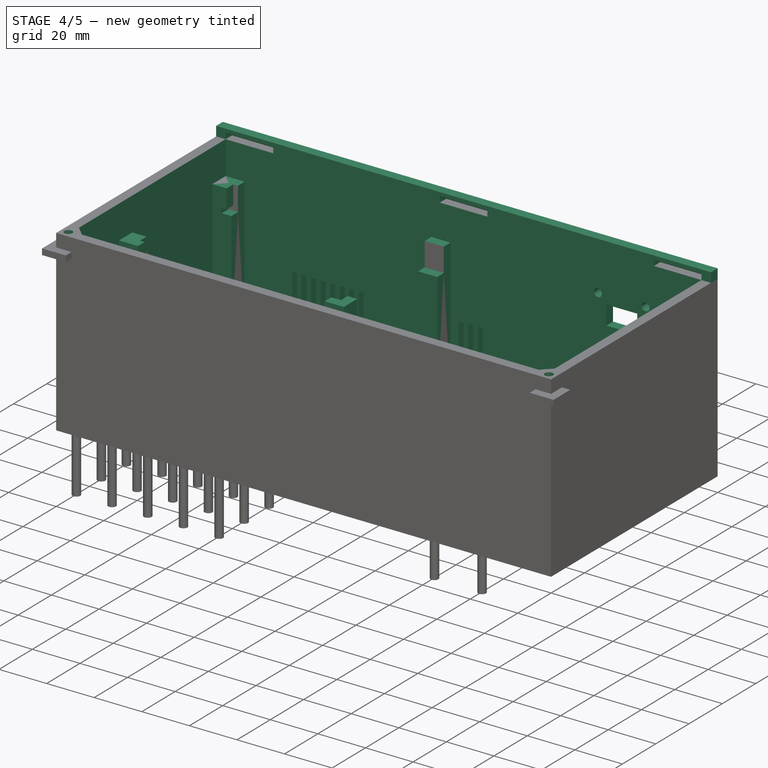
[diagram: stage 4 of 5 — iso view after this stage's code; geometry added in this stage tinted green]
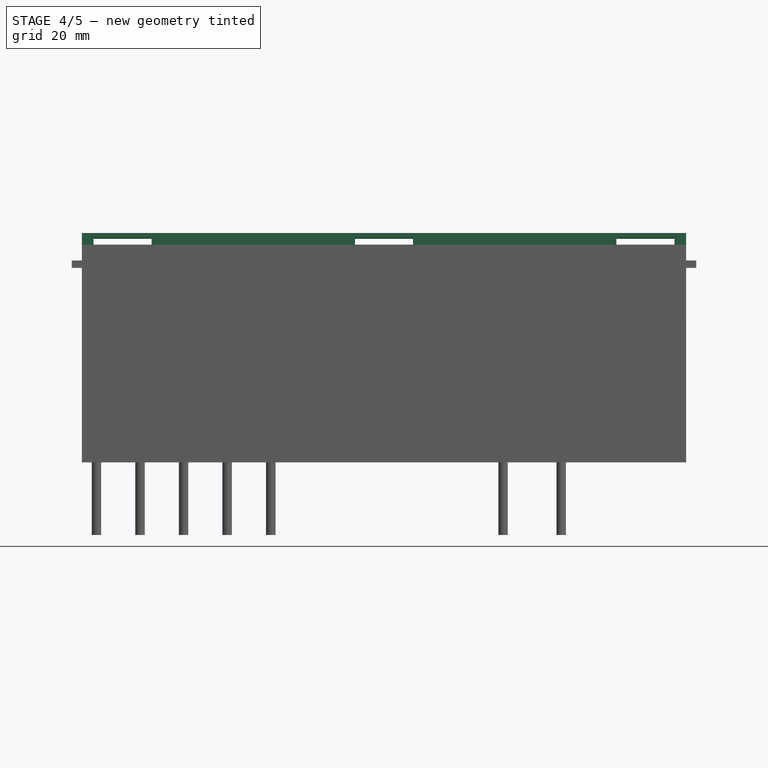
[diagram: stage 4 of 5 — front view after this stage's code; geometry added in this stage tinted green]
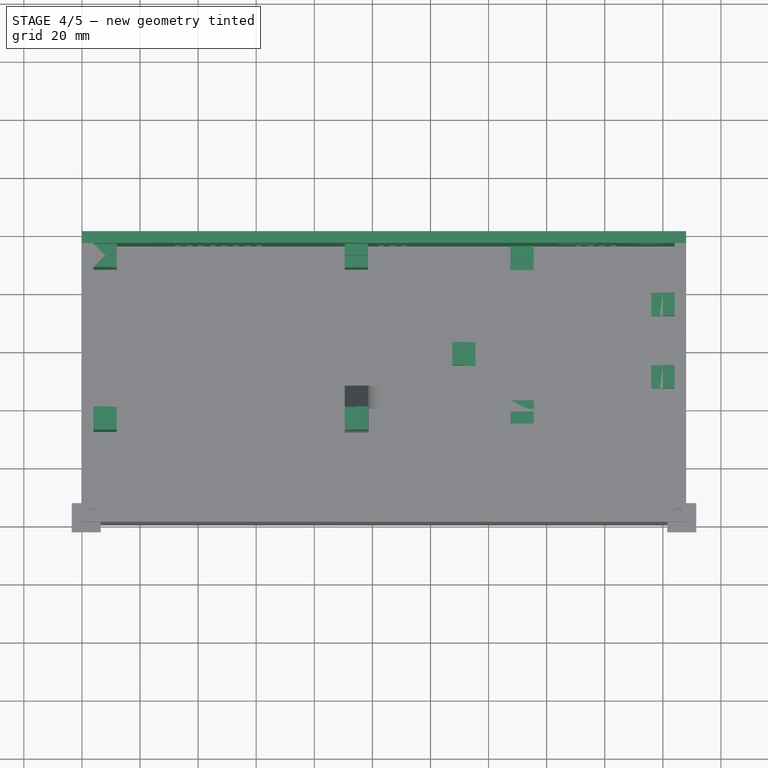
[diagram: stage 4 of 5 — top view after this stage's code; geometry added in this stage tinted green]
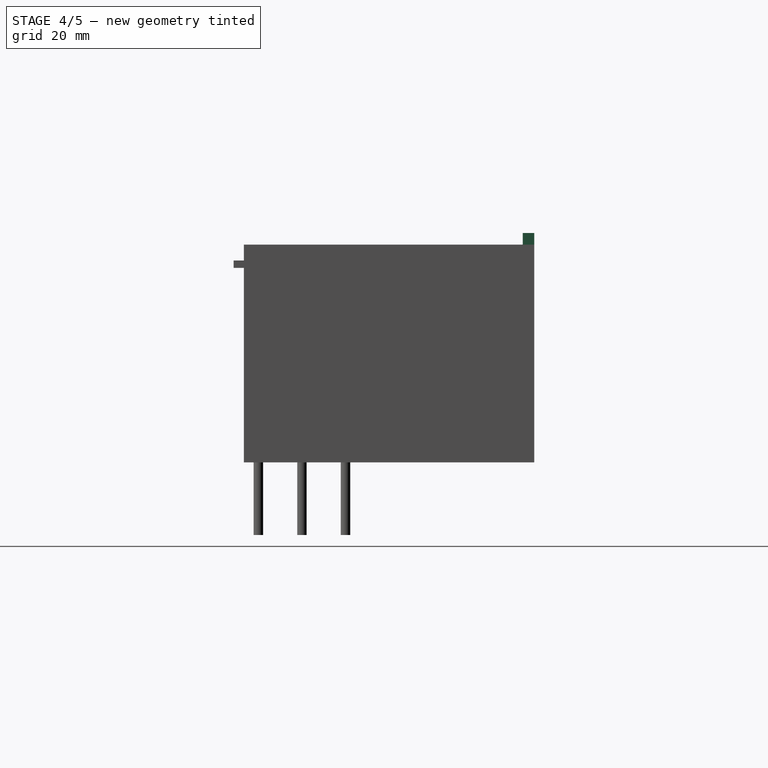
[diagram: stage 4 of 5 — right view after this stage's code; geometry added in this stage tinted green]
FEATURE [PartDesign::Body] Body001  label="Inner volume"
  Group = -> [Sketch001,Pad001]
  Origin = -> Origin001
  Placement = pos=(4,4,4) rot=(0,0,1;0rad)
  Tip = -> Pad001
  expr: .Placement.Base.x = Spreadsheet.wallThickness
  expr: .Placement.Base.y = Spreadsheet.wallThickness
  expr: .Placement.Base.z = Spreadsheet.wallThickness
FEATURE [Part::Cut] Cut  label="Main Box"
  Base = -> Body
  Tool = -> Body001
FEATURE [PartDesign::Body] Body004  label="Front Holes Cuts"
  Group = -> [Sketch008,Pad007,Sketch009,Pad008]
  Origin = -> Origin004
  Placement = pos=(0,-14,0) rot=(0,0,1;0rad)
  Tip = -> Pad008
FEATURE [Sketcher::SketchObject] Sketch010
  FullyConstrained = true
  MapMode = 5
  Placement = pos=(0,0,0) rot=(0.57735,0.57735,0.57735;2.0944rad)
  Support = -> [YZ_Plane005]
  expr: Constraints[10] = Spreadsheet.outerLength
  expr: Constraints[11] = Spreadsheet.outerHeight
  sketch-geometry (4):
    g0: LineSegment StartX=0 StartY=75 StartZ=0 EndX=100 EndY=75 EndZ=0
    g1: LineSegment StartX=100 StartY=75 StartZ=0 EndX=100 EndY=0 EndZ=0
    g2: LineSegment StartX=100 StartY=0 StartZ=0 EndX=0 EndY=0 EndZ=0
    g3: LineSegment StartX=0 StartY=0 StartZ=0 EndX=0 EndY=75 EndZ=0
  constraints (12):
    c: Coincident(g0,g1)
    c: Coincident(g1,g2)
    c: Coincident(g2,g3)
    c: Coincident(g3,g0)
    c: Horizontal(g0)
    c: Horizontal(g2)
    c: Vertical(g1)
    c: Vertical(g3)
    c: PointOnObject(g0,g-2)
    c: PointOnObject(g1,g-1)
    c: DistanceX(g0,g0) = 100
    c: DistanceY(g1,g1) = 75
FEATURE [PartDesign::Pad] Pad009
  Direction = (1,-2e-16,3e-16)
  Length = 1
  Length2 = 10
  Placement = pos=(0,0,0) rot=(1,1,1;2.0944rad)
  Profile = -> Sketch010
  ReferenceAxis = -> Sketch010 [N_Axis]
  Type = 0
FEATURE [PartDesign::Body] Body005  label="Left Side Holes Cut"
  Group = -> [Sketch010,Pad009,Sketch011,Pad010]
  Origin = -> Origin005
  Placement = pos=(-17,0,0) rot=(0,0,1;0rad)
  Tip = -> Pad010
FEATURE [Sketcher::SketchObject] Sketch012
  FullyConstrained = true
  MapMode = 5
  Placement = pos=(0,0,0) rot=(1,0,0;1.5708rad)
  Support = -> [XZ_Plane006]
  expr: Constraints[10] = Spreadsheet.outerHeight
  expr: Constraints[9] = Spreadsheet.outerWidth
  sketch-geometry (4):
    g0: LineSegment StartX=0 StartY=0 StartZ=0 EndX=208 EndY=0 EndZ=0
    g1: LineSegment StartX=208 StartY=0 StartZ=0 EndX=208 EndY=75 EndZ=0
    g2: LineSegment StartX=208 StartY=75 StartZ=0 EndX=0 EndY=75 EndZ=0
    g3: LineSegment StartX=0 StartY=75 StartZ=0 EndX=0 EndY=0 EndZ=0
  constraints (11):
    c: Coincident(g0,g1)
    c: Coincident(g1,g2)
    c: Coincident(g2,g3)
    c: Coincident(g3,g0)
    c: Horizontal(g0)
    c: Horizontal(g2)
    c: Vertical(g1)
    c: Vertical(g3)
    c: Coincident(g0,g-1)
    c: DistanceX(g2,g2) = 208
    c: DistanceY(g1,g1) = 75
FEATURE [PartDesign::Pad] Pad011
  Direction = (0,-1,-2e-16)
  Length = 1
  Length2 = 10
  Placement = pos=(0,0,0) rot=(1,0,0;1.5708rad)
  Profile = -> Sketch012
  ReferenceAxis = -> Sketch012 [N_Axis]
  Type = 0
FEATURE [Sketcher::SketchObject] Sketch013
  FullyConstrained = true
  MapMode = 5
  Placement = pos=(0,-1,-2e-16) rot=(1,0,0;1.5708rad)
  Support = -> [Pad011]
  expr: Constraints[10] = Spreadsheet.m3ScrewholeDiameter
  expr: Constraints[11] = Spreadsheet.phoenix2xHeight
  expr: Constraints[12] = Spreadsheet.phoenix2xWidth
  expr: Constraints[138] = Spreadsheet.ventHoleHeight
  expr: Constraints[139] = Spreadsheet.ventHoleWidth
  expr: Constraints[13] = Spreadsheet.phoenix2xScrewDistanceX
  expr: Constraints[140] = Spreadsheet.ventHoleSpacing
  expr: Constraints[141] = Spreadsheet.ventHoleSpacing
  expr: Constraints[142] = Spreadsheet.ventHoleSpacing
  expr: Constraints[143] = Spreadsheet.ventHoleSpacing
  expr: Constraints[144] = Spreadsheet.ventHoleSpacing
  expr: Constraints[145] = Spreadsheet.ventHoleSpacing
  expr: Constraints[146] = Spreadsheet.ventHoleSpacing
  expr: Constraints[147] = Spreadsheet.ventHoleSpacing
  expr: Constraints[148] = Spreadsheet.ventHoleSpacing
  expr: Constraints[149] = Spreadsheet.ventHoleSpacing
  expr: Constraints[150] = Spreadsheet.ventHoleSpacing
  expr: Constraints[15] = Spreadsheet.phoenix2xScrewDistanceY
  expr: Constraints[16] = Spreadsheet.phoenix2xWidth + Spreadsheet.phoenix2xScrewDistanceX * 2
  expr: Constraints[186] = Spreadsheet.ventHoleSpacing
  sketch-geometry (67):
    g0: Circle CenterX=196 CenterY=55 CenterZ=0 NormalX=0 NormalY=0 NormalZ=1 AngleXU=0 Radius=5.5
    g1: LineSegment StartX=164 StartY=55 StartZ=0 EndX=177 EndY=55 EndZ=0
    g2: LineSegment StartX=177 StartY=55 StartZ=0 EndX=177 EndY=47 EndZ=0
    g3: LineSegment StartX=177 StartY=47 StartZ=0 EndX=164 EndY=47 EndZ=0
    g4: LineSegment StartX=164 StartY=47 StartZ=0 EndX=164 EndY=55 EndZ=0
    g5: Circle CenterX=160.5 CenterY=58.5 CenterZ=0 NormalX=0 NormalY=0 NormalZ=1 AngleXU=0 Radius=1.625
    g6: Circle CenterX=180.5 CenterY=58.5 CenterZ=0 NormalX=0 NormalY=0 NormalZ=1 AngleXU=0 Radius=1.625
    g7: LineSegment StartX=32 StartY=32 StartZ=0 EndX=34 EndY=32 EndZ=0
    g8: LineSegment StartX=34 StartY=32 StartZ=0 EndX=34 EndY=8 EndZ=0
    g9: LineSegment StartX=34 StartY=8 StartZ=0 EndX=32 EndY=8 EndZ=0
    g10: LineSegment StartX=32 StartY=8 StartZ=0 EndX=32 EndY=32 EndZ=0
    g11: LineSegment StartX=36 StartY=32 StartZ=0 EndX=38 EndY=32 EndZ=0
    g12: LineSegment StartX=38 StartY=32 StartZ=0 EndX=38 EndY=8 EndZ=0
    g13: LineSegment StartX=38 StartY=8 StartZ=0 EndX=36 EndY=8 EndZ=0
    g14: LineSegment StartX=36 StartY=8 StartZ=0 EndX=36 EndY=32 EndZ=0
    g15: LineSegment StartX=40 StartY=32 StartZ=0 EndX=42 EndY=32 EndZ=0
    g16: LineSegment StartX=42 StartY=32 StartZ=0 EndX=42 EndY=8 EndZ=0
    g17: LineSegment StartX=42 StartY=8 StartZ=0 EndX=40 EndY=8 EndZ=0
    g18: LineSegment StartX=40 StartY=8 StartZ=0 EndX=40 EndY=32 EndZ=0
    g19: LineSegment StartX=44 StartY=32 StartZ=0 EndX=46 EndY=32 EndZ=0
    g20: LineSegment StartX=46 StartY=32 StartZ=0 EndX=46 EndY=8 EndZ=0
    g21: LineSegment StartX=46 StartY=8 StartZ=0 EndX=44 EndY=8 EndZ=0
    g22: LineSegment StartX=44 StartY=8 StartZ=0 EndX=44 EndY=32 EndZ=0
    g23: LineSegment StartX=48 StartY=32 StartZ=0 EndX=50 EndY=32 EndZ=0
    g24: LineSegment StartX=50 StartY=32 StartZ=0 EndX=50 EndY=8 EndZ=0
    g25: LineSegment StartX=50 StartY=8 StartZ=0 EndX=48 EndY=8 EndZ=0
    g26: LineSegment StartX=48 StartY=8 StartZ=0 EndX=48 EndY=32 EndZ=0
    g27: LineSegment StartX=52 StartY=32 StartZ=0 EndX=54 EndY=32 EndZ=0
    g28: LineSegment StartX=54 StartY=32 StartZ=0 EndX=54 EndY=8 EndZ=0
    g29: LineSegment StartX=54 StartY=8 StartZ=0 EndX=52 EndY=8 EndZ=0
    g30: LineSegment StartX=52 StartY=8 StartZ=0 EndX=52 EndY=32 EndZ=0
    g31: LineSegment StartX=56 StartY=32 StartZ=0 EndX=58 EndY=32 EndZ=0
    g32: LineSegment StartX=58 StartY=32 StartZ=0 EndX=58 EndY=8 EndZ=0
    g33: LineSegment StartX=58 StartY=8 StartZ=0 EndX=56 EndY=8 EndZ=0
    g34: LineSegment StartX=56 StartY=8 StartZ=0 EndX=56 EndY=32 EndZ=0
    g35: LineSegment StartX=60 StartY=32 StartZ=0 EndX=62 EndY=32 EndZ=0
    g36: LineSegment StartX=62 StartY=32 StartZ=0 EndX=62 EndY=8 EndZ=0
    g37: LineSegment StartX=62 StartY=8 StartZ=0 EndX=60 EndY=8 EndZ=0
    g38: LineSegment StartX=60 StartY=8 StartZ=0 EndX=60 EndY=32 EndZ=0
    g39: LineSegment StartX=102 StartY=32 StartZ=0 EndX=104 EndY=32 EndZ=0
    g40: LineSegment StartX=104 StartY=32 StartZ=0 EndX=104 EndY=8 EndZ=0
    g41: LineSegment StartX=104 StartY=8 StartZ=0 EndX=102 EndY=8 EndZ=0
    g42: LineSegment StartX=102 StartY=8 StartZ=0 EndX=102 EndY=32 EndZ=0
    g43: LineSegment StartX=106 StartY=32 StartZ=0 EndX=108 EndY=32 EndZ=0
    g44: LineSegment StartX=108 StartY=32 StartZ=0 EndX=108 EndY=8 EndZ=0
    g45: LineSegment StartX=108 StartY=8 StartZ=0 EndX=106 EndY=8 EndZ=0
    g46: LineSegment StartX=106 StartY=8 StartZ=0 EndX=106 EndY=32 EndZ=0
    g47: LineSegment StartX=110 StartY=32 StartZ=0 EndX=112 EndY=32 EndZ=0
    g48: LineSegment StartX=110 StartY=8 StartZ=0 EndX=110 EndY=32 EndZ=0
    g49: LineSegment StartX=112 StartY=32 StartZ=0 EndX=112 EndY=8 EndZ=0
    g50: LineSegment StartX=172 StartY=32 StartZ=0 EndX=172 EndY=8 EndZ=0
    g51: LineSegment StartX=174 StartY=8 StartZ=0 EndX=174 EndY=32 EndZ=0
    g52: LineSegment StartX=176 StartY=32 StartZ=0 EndX=176 EndY=8 EndZ=0
    g53: LineSegment StartX=170 StartY=8 StartZ=0 EndX=170 EndY=32 EndZ=0
    g54: LineSegment StartX=178 StartY=32 StartZ=0 EndX=180 EndY=32 EndZ=0
    g55: LineSegment StartX=180 StartY=32 StartZ=0 EndX=180 EndY=8 EndZ=0
    g56: LineSegment StartX=180 StartY=8 StartZ=0 EndX=178 EndY=8 EndZ=0
    g57: LineSegment StartX=178 StartY=8 StartZ=0 EndX=178 EndY=32 EndZ=0
    g58: LineSegment StartX=182 StartY=32 StartZ=0 EndX=184 EndY=32 EndZ=0
    g59: LineSegment StartX=184 StartY=32 StartZ=0 EndX=184 EndY=8 EndZ=0
    g60: LineSegment StartX=184 StartY=8 StartZ=0 EndX=182 EndY=8 EndZ=0
    g61: LineSegment StartX=182 StartY=8 StartZ=0 EndX=182 EndY=32 EndZ=0
    g62: LineSegment StartX=110 StartY=8 StartZ=0 EndX=112 EndY=8 EndZ=0
    g63: LineSegment StartX=172 StartY=32 StartZ=0 EndX=170 EndY=32 EndZ=0
    g64: LineSegment StartX=172 StartY=8 StartZ=0 EndX=170 EndY=8 EndZ=0
    g65: LineSegment StartX=174 StartY=8 StartZ=0 EndX=176 EndY=8 EndZ=0
    g66: LineSegment StartX=174 StartY=32 StartZ=0 EndX=176 EndY=32 EndZ=0
  constraints (201):
    c: Diameter(g0) = 11
    c: Coincident(g1,g2)
    c: Coincident(g2,g3)
    c: Coincident(g3,g4)
    c: Coincident(g4,g1)
    c: Horizontal(g1)
    c: Horizontal(g3)
    c: Vertical(g2)
    c: Vertical(g4)
    c: Equal(g6,g5)
    c: Diameter(g6) = 3.25
    c: DistanceY(g2,g2) = 8
    c: DistanceX(g1,g1) = 13
    c: DistanceX(g1,g6) = 3.5
    c: DistanceY(g5,g6) = 0
    c: DistanceY(g1,g6) = 3.5
    c: DistanceX(g5,g6) = 20
    c: DistanceY(g-1,g0) = 55
    c: DistanceX(g-1,g0) = 196
    c: DistanceX(g-1,g3) = 164
    c: DistanceY(g1,g0) = 0
    c: Coincident(g7,g8)
    c: Coincident(g8,g9)
    c: Coincident(g9,g10)
    c: Coincident(g10,g7)
    c: Horizontal(g7)
    c: Horizontal(g9)
    c: Vertical(g8)
    c: Vertical(g10)
    c: Coincident(g11,g12)
    c: Coincident(g12,g13)
    c: Coincident(g13,g14)
    c: Coincident(g14,g11)
    c: Horizontal(g11)
    c: Horizontal(g13)
    c: Vertical(g12)
    c: Vertical(g14)
    c: Coincident(g15,g16)
    c: Coincident(g16,g17)
    c: Coincident(g17,g18)
    c: Coincident(g18,g15)
    c: Horizontal(g15)
    c: Horizontal(g17)
    c: Vertical(g16)
    c: Vertical(g18)
    c: Coincident(g19,g20)
    c: Coincident(g20,g21)
    c: Coincident(g21,g22)
    c: Coincident(g22,g19)
    c: Horizontal(g19)
    c: Horizontal(g21)
    c: Vertical(g20)
    c: Vertical(g22)
    c: Coincident(g23,g24)
    c: Coincident(g24,g25)
    c: Coincident(g25,g26)
    c: Coincident(g26,g23)
    c: Horizontal(g23)
    c: Horizontal(g25)
    c: Vertical(g24)
    c: Vertical(g26)
    c: Coincident(g27,g28)
    c: Coincident(g28,g29)
    c: Coincident(g29,g30)
    c: Coincident(g30,g27)
    c: Horizontal(g27)
    c: Horizontal(g29)
    c: Vertical(g28)
    c: Vertical(g30)
    c: Coincident(g31,g32)
    c: Coincident(g32,g33)
    c: Coincident(g33,g34)
    c: Coincident(g34,g31)
    c: Horizontal(g31)
    c: Horizontal(g33)
    c: Vertical(g32)
    c: Vertical(g34)
    c: Coincident(g35,g36)
    c: Coincident(g36,g37)
    c: Coincident(g37,g38)
    c: Coincident(g38,g35)
    c: Horizontal(g35)
    c: Horizontal(g37)
    c: Vertical(g36)
    c: Vertical(g38)
    c: Coincident(g39,g40)
    c: Coincident(g40,g41)
    c: Coincident(g41,g42)
    c: Coincident(g42,g39)
    c: Horizontal(g39)
    c: Horizontal(g41)
    c: Vertical(g40)
    c: Vertical(g42)
    c: Coincident(g43,g44)
    c: Coincident(g44,g45)
    c: Coincident(g45,g46)
    c: Coincident(g46,g43)
    c: Horizontal(g43)
    c: Horizontal(g45)
    c: Vertical(g44)
    c: Vertical(g46)
    c: Coincident(g48,g47)
    c: Horizontal(g47)
    c: Vertical(g48)
    c: Vertical(g49)
    c: Vertical(g50)
    c: Vertical(g51)
    c: Vertical(g52)
    c: Vertical(g53)
    c: Coincident(g57,g54)
    c: Horizontal(g54)
    c: Horizontal(g56)
    c: Vertical(g55)
    c: Vertical(g57)
    c: Horizontal(g58)
    c: Horizontal(g60)
    c: Vertical(g59)
    c: Vertical(g61)
    c: Equal(g10,g14)
    c: Equal(g14,g18)
    c: Equal(g18,g22)
    c: Equal(g22,g26)
    c: Equal(g26,g30)
    c: Equal(g30,g34)
    c: Equal(g34,g38)
    c: Equal(g38,g42)
    c: Equal(g42,g46)
    c: Equal(g46,g48)
    c: Equal(g7,g11)
    c: Equal(g11,g15)
    c: Equal(g15,g19)
    c: Equal(g19,g23)
    c: Equal(g23,g27)
    c: Equal(g27,g31)
    c: Equal(g31,g35)
    c: Equal(g35,g39)
    c: Equal(g39,g43)
    c: Equal(g43,g47)
    c: DistanceY(g10,g10) = 24
    c: DistanceX(g7,g7) = 2
    c: DistanceX(g7,g11) = 2
    c: DistanceX(g11,g15) = 2
    c: DistanceX(g15,g19) = 2
    c: DistanceX(g19,g23) = 2
    c: DistanceX(g23,g27) = 2
    c: DistanceX(g27,g31) = 2
    c: DistanceX(g31,g35) = 2
    c: DistanceX(g39,g43) = 2
    c: DistanceX(g43,g47) = 2
    c: DistanceX(g52,g54) = 2
    c: DistanceX(g54,g58) = 2
    c: DistanceY(g7,g11) = 0
    c: DistanceY(g15,g11) = 0
    c: DistanceY(g19,g15) = 0
    c: DistanceY(g23,g19) = 0
    c: DistanceY(g23,g27) = 0
    c: DistanceY(g31,g27) = 0
    c: DistanceY(g31,g35) = 0
    c: DistanceY(g35,g39) = 0
    c: DistanceY(g43,g39) = 0
    c: DistanceY(g43,g47) = 0
    c: DistanceY(g49,g51) = 0
    c: DistanceY(g52,g54) = 0
    c: DistanceY(g54,g58) = 0
    c: DistanceX(g-1,g9) = 32
    c: DistanceX(g35,g39) = 40
    c: DistanceY(g-1,g9) = 8
    c: Coincident(g49,g47)
    c: Coincident(g62,g48)
    c: Coincident(g62,g49)
    c: Horizontal(g62)
    c: Coincident(g63,g50)
    c: Coincident(g63,g53)
    c: Horizontal(g63)
    c: Coincident(g64,g50)
    c: Coincident(g64,g53)
    c: Horizontal(g64)
    c: Coincident(g65,g51)
    c: Coincident(g65,g52)
    c: Horizontal(g65)
    c: Coincident(g66,g51)
    c: Coincident(g66,g52)
    c: Horizontal(g66)
    c: DistanceX(g47,g50) = 60
    c: Coincident(g56,g57)
    c: DistanceY(g53,g47) = 0
    c: DistanceX(g50,g51) = 2
    c: Equal(g63,g66)
    c: Equal(g66,g54)
    c: Equal(g54,g58)
    c: Equal(g58,g7)
    c: Coincident(g58,g59)
    c: Coincident(g60,g59)
    c: Coincident(g55,g54)
    c: Coincident(g56,g55)
    c: Coincident(g61,g58)
    c: Coincident(g60,g61)
    c: Equal(g53,g51)
    c: Equal(g51,g57)
    c: Equal(g57,g61)
    c: Equal(g61,g10)
FEATURE [PartDesign::Pad] Pad012
  BaseFeature = -> Pad011
  Direction = (0,-1,-2e-16)
  Length = 25
  Length2 = 10
  Placement = pos=(0,0,0) rot=(1,0,0;1.5708rad)
  Profile = -> Sketch013
  ReferenceAxis = -> Sketch013 [N_Axis]
  Type = 0
FEATURE [PartDesign::Body] Body006  label="Rear Holes Cuts"
  Group = -> [Sketch012,Pad011,Sketch013,Pad012]
  Origin = -> Origin006
  Placement = pos=(0,117,0) rot=(0,0,1;0rad)
  Tip = -> Pad012
FEATURE [Sketcher::SketchObject] Sketch014
  FullyConstrained = true
  MapMode = 5
  Support = -> [XY_Plane007]
  expr: Constraints[10] = Spreadsheet.outerWidth
  expr: Constraints[9] = Spreadsheet.outerLength
  sketch-geometry (4):
    g0: LineSegment StartX=0 StartY=0 StartZ=0 EndX=208 EndY=0 EndZ=0
    g1: LineSegment StartX=208 StartY=0 StartZ=0 EndX=208 EndY=100 EndZ=0
    g2: LineSegment StartX=208 StartY=100 StartZ=0 EndX=0 EndY=100 EndZ=0
    g3: LineSegment StartX=0 StartY=100 StartZ=0 EndX=0 EndY=0 EndZ=0
  constraints (11):
    c: Coincident(g0,g1)
    c: Coincident(g1,g2)
    c: Coincident(g2,g3)
    c: Coincident(g3,g0)
    c: Horizontal(g0)
    c: Horizontal(g2)
    c: Vertical(g1)
    c: Vertical(g3)
    c: Coincident(g0,g-1)
    c: DistanceY(g3,g3) = 100
    c: DistanceX(g0,g0) = 208
FEATURE [PartDesign::Pad] Pad013
  Direction = (0,0,1)
  Length = 1
  Length2 = 10
  Profile = -> Sketch014
  ReferenceAxis = -> Sketch014 [N_Axis]
  Type = 0
FEATURE [Sketcher::SketchObject] Sketch015
  FullyConstrained = true
  MapMode = 5
  Support = -> [XY_Plane007]
  expr: Constraints[1] = Spreadsheet.m3ScrewholeDiameter
  expr: Constraints[3] = Spreadsheet.wallThickness * 0.75
  expr: Constraints[4] = Spreadsheet.wallThickness * 0.75
  expr: Constraints[5] = Spreadsheet.outerWidth - Spreadsheet.wallThickness * 1.5
  sketch-geometry (2):
    g0: Circle CenterX=3 CenterY=3 CenterZ=0 NormalX=0 NormalY=0 NormalZ=1 AngleXU=0 Radius=1.625
    g1: Circle CenterX=205 CenterY=3 CenterZ=0 NormalX=0 NormalY=0 NormalZ=1 AngleXU=0 Radius=1.625
  constraints (6):
    c: Equal(g0,g1)
    c: Diameter(g0) = 3.25
    c: DistanceY(g1,g0) = 0
    c: DistanceY(g-1,g0) = 3
    c: DistanceX(g-1,g0) = 3
    c: DistanceX(g0,g1) = 202
FEATURE [PartDesign::Pad] Pad014
  BaseFeature = -> Pad013
  Direction = (0,0,-1)
  Length = 40
  Length2 = 10
  Profile = -> Sketch015
  ReferenceAxis = -> Sketch015 [N_Axis]
  Type = 0
  UseCustomVector = true
FEATURE [PartDesign::Body] Body008  label="Lid Catch"
  Group = -> [Sketch018,Pad017,Sketch019,Sketch020,Pocket001,Fillet]
  Origin = -> Origin008
  Placement = pos=(0,0,75) rot=(0,0,1;0rad)
  Tip = -> Fillet
  expr: .Placement.Base.z = Spreadsheet.outerHeight
FEATURE [Part::MultiFuse] Fusion  label="Box and Supports"
  Shapes = -> [Body008,Cut,Body002,Body003]
FEATURE [Part::Cut] Cut001
  Base = -> Fusion
  Tool = -> Body007
FEATURE [Part::Cut] Cut002
  Base = -> Cut001
  Tool = -> Body006
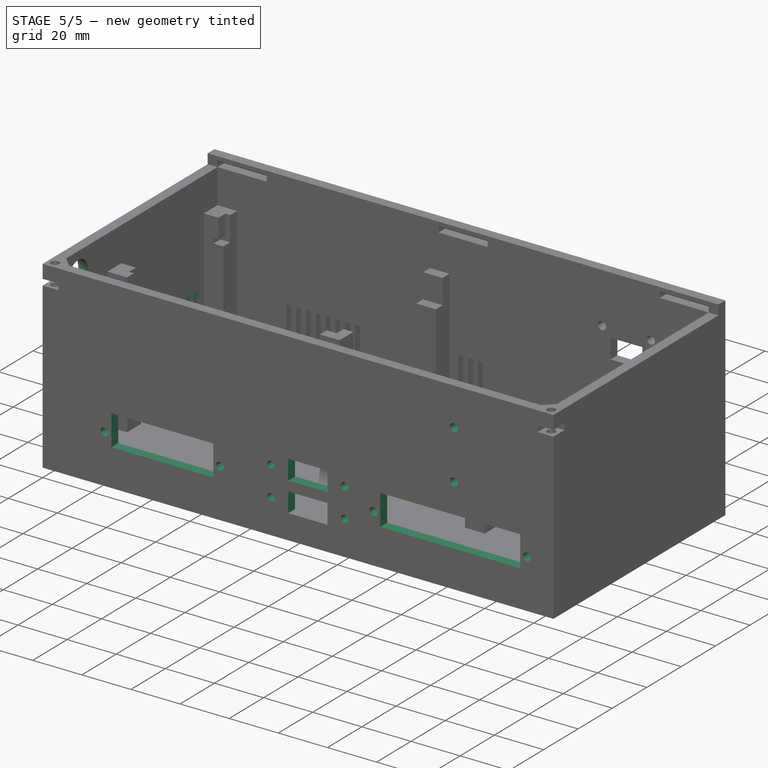
[diagram: stage 5 of 5 — iso view after this stage's code; geometry added in this stage tinted green]
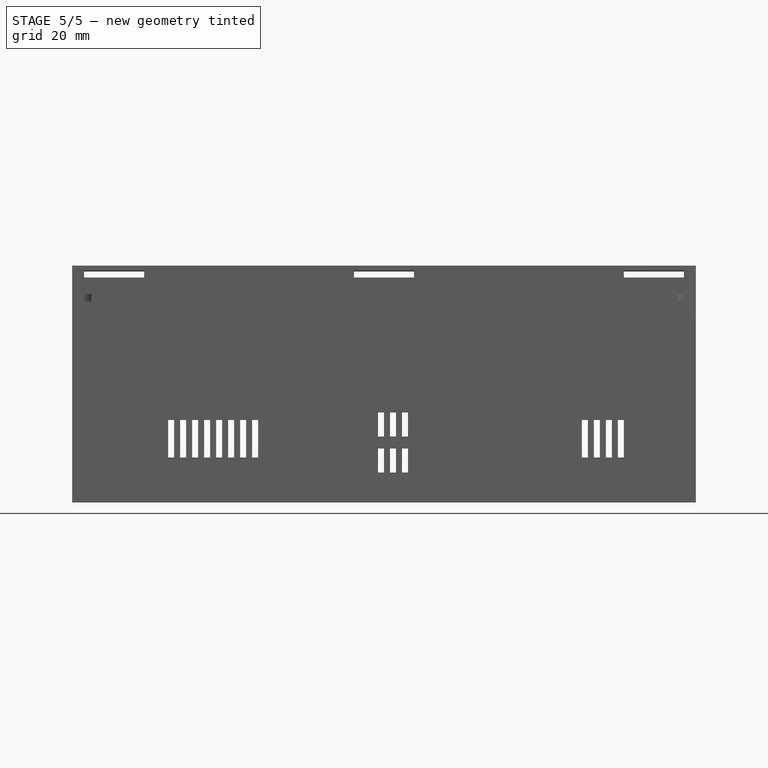
[diagram: stage 5 of 5 — front view after this stage's code; geometry added in this stage tinted green]
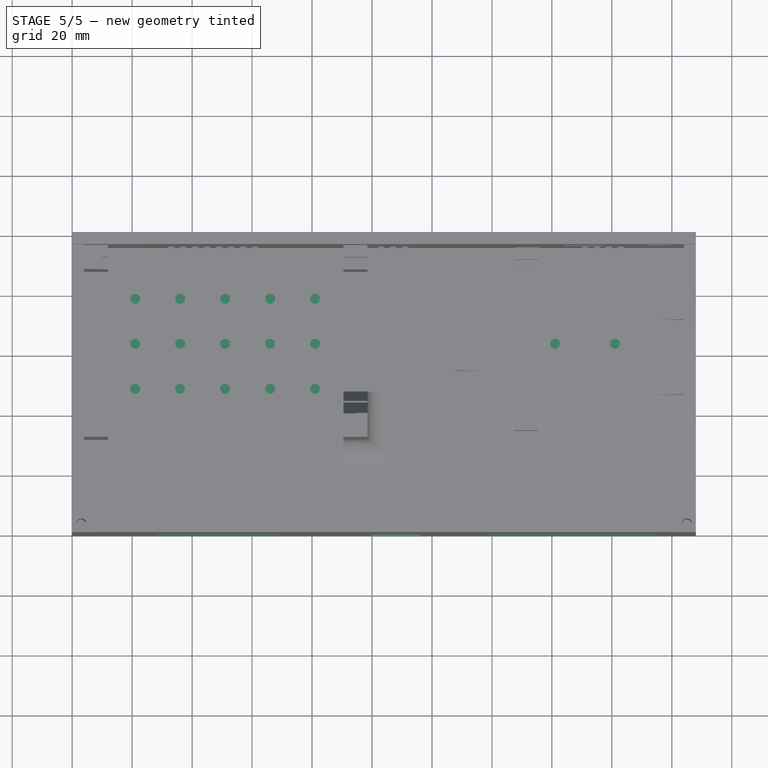
[diagram: stage 5 of 5 — top view after this stage's code; geometry added in this stage tinted green]
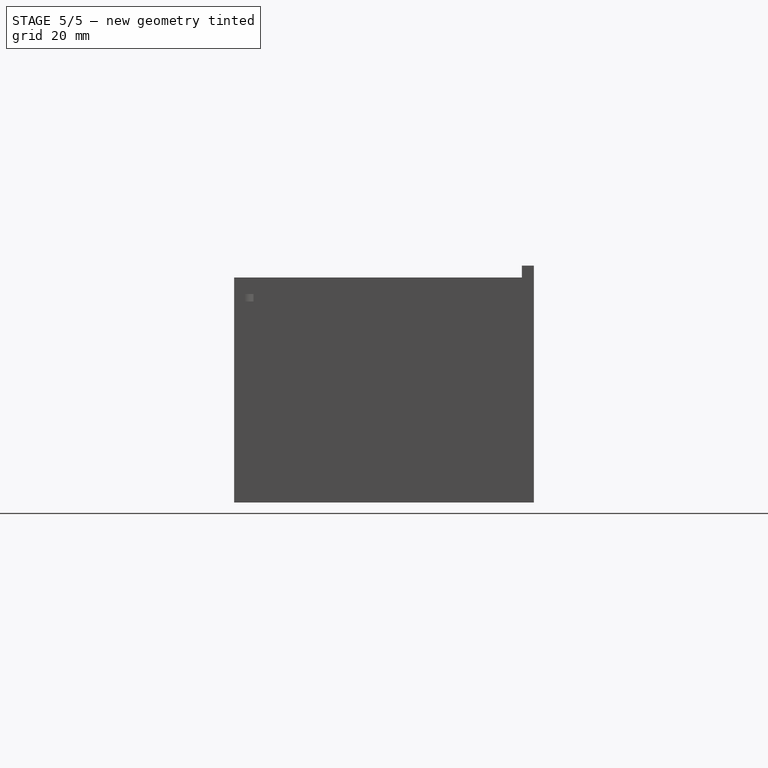
[diagram: stage 5 of 5 — right view after this stage's code; geometry added in this stage tinted green]
FEATURE [Sketcher::SketchObject] Sketch008
  FullyConstrained = true
  MapMode = 5
  Placement = pos=(0,0,0) rot=(1,0,0;1.5708rad)
  Support = -> [XZ_Plane004]
  expr: Constraints[10] = Spreadsheet.outerWidth
  expr: Constraints[9] = Spreadsheet.outerHeight
  sketch-geometry (4):
    g0: LineSegment StartX=0 StartY=0 StartZ=0 EndX=208 EndY=0 EndZ=0
    g1: LineSegment StartX=208 StartY=0 StartZ=0 EndX=208 EndY=75 EndZ=0
    g2: LineSegment StartX=208 StartY=75 StartZ=0 EndX=0 EndY=75 EndZ=0
    g3: LineSegment StartX=0 StartY=75 StartZ=0 EndX=0 EndY=0 EndZ=0
  constraints (11):
    c: Coincident(g0,g1)
    c: Coincident(g1,g2)
    c: Coincident(g2,g3)
    c: Coincident(g3,g0)
    c: Horizontal(g0)
    c: Horizontal(g2)
    c: Vertical(g1)
    c: Vertical(g3)
    c: Coincident(g0,g-1)
    c: DistanceY(g3,g3) = 75
    c: DistanceX(g0,g0) = 208
FEATURE [PartDesign::Pad] Pad007
  Direction = (0,-1,-2e-16)
  Length = 1
  Length2 = 10
  Placement = pos=(0,0,0) rot=(1,0,0;1.5708rad)
  Profile = -> Sketch008
  ReferenceAxis = -> Sketch008 [N_Axis]
  Type = 0
FEATURE [Sketcher::SketchObject] Sketch009
  FullyConstrained = true
  MapMode = 5
  Placement = pos=(0,0,0) rot=(-1,0,0;1.5708rad)
  Support = -> [Pad007]
  expr: Constraints[52] = Spreadsheet.m3ScrewholeDiameter
  expr: Constraints[54] = Spreadsheet.phoenixScrewholeDistance
  expr: Constraints[55] = Spreadsheet.phoenixScrewholeDistance
  expr: Constraints[56] = Spreadsheet.phoenixScrewholeDistance
  expr: Constraints[57] = Spreadsheet.phoenixScrewholeDistance
  expr: Constraints[73] = Spreadsheet.m3ScrewholeDiameter
  sketch-geometry (26):
    g0: LineSegment StartX=116 StartY=-30 StartZ=0 EndX=100 EndY=-30 EndZ=0
    g1: LineSegment StartX=100 StartY=-30 StartZ=0 EndX=100 EndY=-22 EndZ=0
    g2: LineSegment StartX=100 StartY=-22 StartZ=0 EndX=116 EndY=-22 EndZ=0
    g3: LineSegment StartX=116 StartY=-22 StartZ=0 EndX=116 EndY=-30 EndZ=0
    g4: LineSegment StartX=116 StartY=-18 StartZ=0 EndX=100 EndY=-18 EndZ=0
    g5: LineSegment StartX=100 StartY=-18 StartZ=0 EndX=100 EndY=-10 EndZ=0
    g6: LineSegment StartX=100 StartY=-10 StartZ=0 EndX=116 EndY=-10 EndZ=0
    g7: LineSegment StartX=116 StartY=-10 StartZ=0 EndX=116 EndY=-18 EndZ=0
    g8: Circle CenterX=93 CenterY=-26 CenterZ=0 NormalX=0 NormalY=0 NormalZ=1 AngleXU=0 Radius=1.5
    g9: Circle CenterX=93 CenterY=-14 CenterZ=0 NormalX=0 NormalY=0 NormalZ=1 AngleXU=0 Radius=1.5
    g10: Circle CenterX=123 CenterY=-14 CenterZ=0 NormalX=0 NormalY=0 NormalZ=1 AngleXU=0 Radius=1.5
    g11: Circle CenterX=123 CenterY=-26 CenterZ=0 NormalX=0 NormalY=0 NormalZ=1 AngleXU=0 Radius=1.5
    g12: LineSegment StartX=69.5 StartY=-27.5 StartZ=0 EndX=28 EndY=-27.5 EndZ=0
    g13: LineSegment StartX=28 StartY=-27.5 StartZ=0 EndX=28 EndY=-15 EndZ=0
    g14: LineSegment StartX=28 StartY=-15 StartZ=0 EndX=69.5 EndY=-15 EndZ=0
    g15: LineSegment StartX=194.5 StartY=-27.5 StartZ=0 EndX=137.5 EndY=-27.5 EndZ=0
    g16: LineSegment StartX=137.5 StartY=-27.5 StartZ=0 EndX=137.5 EndY=-15 EndZ=0
    g17: LineSegment StartX=137.5 StartY=-15 StartZ=0 EndX=194.5 EndY=-15 EndZ=0
    g18: LineSegment StartX=194.5 StartY=-15 StartZ=0 EndX=194.5 EndY=-27.5 EndZ=0
    g19: Circle CenterX=197.25 CenterY=-19.86 CenterZ=0 NormalX=0 NormalY=0 NormalZ=1 AngleXU=0 Radius=1.625
    g20: Circle CenterX=134.75 CenterY=-19.86 CenterZ=0 NormalX=0 NormalY=0 NormalZ=1 AngleXU=0 Radius=1.625
    g21: Circle CenterX=72.25 CenterY=-19.85 CenterZ=0 NormalX=0 NormalY=0 NormalZ=1 AngleXU=0 Radius=1.625
    g22: Circle CenterX=25.25 CenterY=-19.85 CenterZ=0 NormalX=0 NormalY=0 NormalZ=1 AngleXU=0 Radius=1.625
    g23: LineSegment StartX=69.5 StartY=-27.5 StartZ=0 EndX=69.5 EndY=-15 EndZ=0
    g24: Circle CenterX=167.5 CenterY=-39.5 CenterZ=0 NormalX=0 NormalY=0 NormalZ=1 AngleXU=0 Radius=1.625
    g25: Circle CenterX=167.5 CenterY=-59.5 CenterZ=0 NormalX=0 NormalY=0 NormalZ=1 AngleXU=0 Radius=1.625
  constraints (78):
    c: Coincident(g0,g1)
    c: Coincident(g1,g2)
    c: Coincident(g2,g3)
    c: Coincident(g3,g0)
    c: Horizontal(g0)
    c: Horizontal(g2)
    c: Vertical(g1)
    c: Vertical(g3)
    c: Coincident(g4,g5)
    c: Coincident(g5,g6)
    c: Coincident(g6,g7)
    c: Coincident(g7,g4)
    c: Horizontal(g4)
    c: Horizontal(g6)
    c: Vertical(g5)
    c: Vertical(g7)
    c: Equal(g4,g0)
    c: Equal(g3,g7)
    c: DistanceY(g3,g3) = 8
    c: DistanceX(g0,g0) = 16
    c: Equal(g9,g8)
    c: Equal(g9,g11)
    c: Equal(g9,g10)
    c: Diameter(g9) = 3
    c: DistanceX(g8,g0) = 7
    c: DistanceX(g2,g11) = 7
    c: DistanceX(g6,g10) = 7
    c: DistanceX(g9,g5) = 7
    c: DistanceX(g4,g2) = 0
    c: DistanceY(g1,g4) = 4
    c: DistanceY(g11,g2) = 4
    c: DistanceY(g11,g8) = 0
    c: DistanceY(g9,g10) = 0
    c: DistanceY(g10,g6) = 4
    c: DistanceY(g5,g-1) = 10
    c: DistanceX(g-1,g5) = 100
    c: Coincident(g12,g13)
    c: Coincident(g13,g14)
    c: Horizontal(g12)
    c: Horizontal(g14)
    c: Vertical(g13)
    c: Coincident(g15,g16)
    c: Coincident(g16,g17)
    c: Coincident(g17,g18)
    c: Coincident(g18,g15)
    c: Horizontal(g15)
    c: Horizontal(g17)
    c: Vertical(g16)
    c: Vertical(g18)
    c: Equal(g19,g20)
    c: Equal(g19,g21)
    c: Equal(g19,g22)
    c: Diameter(g19) = 3.25
    c: DistanceY(g16,g14) = 0
    c: DistanceX(g17,g19) = 2.75
    c: DistanceX(g20,g16) = 2.75
    c: DistanceX(g14,g21) = 2.75
    c: DistanceX(g22,g13) = 2.75
    c: DistanceY(g22,g21) = 0
    c: DistanceY(g22,g13) = 4.85
    c: DistanceY(g20,g19) = 0
    c: DistanceY(g20,g16) = 4.86
    c: DistanceX(g12,g12) = 41.5
    c: DistanceX(g15,g15) = 57
    c: Equal(g16,g13)
    c: DistanceY(g13,g13) = 12.5
    c: DistanceX(g12,g15) = 68
    c: DistanceY(g13,g-1) = 15
    c: DistanceX(g-1,g13) = 28
    c: Coincident(g23,g12)
    c: Coincident(g23,g14)
    c: Vertical(g23)
    c: Equal(g25,g24)
    c: Diameter(g25) = 3.25
    c: DistanceX(g24,g25) = 0
    c: DistanceY(g24,g15) = 12
    c: DistanceY(g25,g24) = 20
    c: DistanceX(g15,g24) = 30
FEATURE [PartDesign::Pad] Pad008
  BaseFeature = -> Pad007
  Direction = (0,1,2e-16)
  Length = 25
  Length2 = 10
  Placement = pos=(0,0,0) rot=(1,0,0;1.5708rad)
  Profile = -> Sketch009
  ReferenceAxis = -> Sketch009 [N_Axis]
  Type = 0
FEATURE [Sketcher::SketchObject] Sketch011
  FullyConstrained = true
  MapMode = 5
  Placement = pos=(1,-4e-16,3e-16) rot=(0.57735,0.57735,0.57735;2.0944rad)
  Support = -> [Pad009]
  expr: Constraints[0] = Spreadsheet.buttonDiameter
  expr: Constraints[81] = <<Distances>>.ventHoleHeight
  expr: Constraints[82] = Spreadsheet.ventHoleSpacing
  expr: Constraints[83] = Spreadsheet.ventHoleSpacing
  expr: Constraints[84] = Spreadsheet.ventHoleSpacing
  expr: Constraints[85] = Spreadsheet.ventHoleSpacing
  expr: Constraints[86] = Spreadsheet.ventHoleSpacing
  expr: Constraints[87] = Spreadsheet.ventHoleSpacing
  expr: Constraints[88] = Spreadsheet.ventHoleSpacing
  expr: Constraints[89] = Spreadsheet.ventHoleWidth
  sketch-geometry (33):
    g0: Circle CenterX=15 CenterY=66 CenterZ=0 NormalX=0 NormalY=0 NormalZ=1 AngleXU=0 Radius=5.75
    g1: LineSegment StartX=54 StartY=34 StartZ=0 EndX=56 EndY=34 EndZ=0
    g2: LineSegment StartX=56 StartY=34 StartZ=0 EndX=56 EndY=10 EndZ=0
    g3: LineSegment StartX=56 StartY=10 StartZ=0 EndX=54 EndY=10 EndZ=0
    g4: LineSegment StartX=54 StartY=10 StartZ=0 EndX=54 EndY=34 EndZ=0
    g5: LineSegment StartX=58 StartY=34 StartZ=0 EndX=60 EndY=34 EndZ=0
    g6: LineSegment StartX=60 StartY=34 StartZ=0 EndX=60 EndY=10 EndZ=0
    g7: LineSegment StartX=60 StartY=10 StartZ=0 EndX=58 EndY=10 EndZ=0
    g8: LineSegment StartX=58 StartY=10 StartZ=0 EndX=58 EndY=34 EndZ=0
    g9: LineSegment StartX=62 StartY=34 StartZ=0 EndX=64 EndY=34 EndZ=0
    g10: LineSegment StartX=64 StartY=34 StartZ=0 EndX=64 EndY=10 EndZ=0
    g11: LineSegment StartX=64 StartY=10 StartZ=0 EndX=62 EndY=10 EndZ=0
    g12: LineSegment StartX=62 StartY=10 StartZ=0 EndX=62 EndY=34 EndZ=0
    g13: LineSegment StartX=66 StartY=34 StartZ=0 EndX=68 EndY=34 EndZ=0
    g14: LineSegment StartX=68 StartY=34 StartZ=0 EndX=68 EndY=10 EndZ=0
    g15: LineSegment StartX=68 StartY=10 StartZ=0 EndX=66 EndY=10 EndZ=0
    g16: LineSegment StartX=66 StartY=10 StartZ=0 EndX=66 EndY=34 EndZ=0
    g17: LineSegment StartX=70 StartY=34 StartZ=0 EndX=72 EndY=34 EndZ=0
    g18: LineSegment StartX=72 StartY=34 StartZ=0 EndX=72 EndY=10 EndZ=0
    g19: LineSegment StartX=72 StartY=10 StartZ=0 EndX=70 EndY=10 EndZ=0
    g20: LineSegment StartX=70 StartY=10 StartZ=0 EndX=70 EndY=34 EndZ=0
    g21: LineSegment StartX=74 StartY=34 StartZ=0 EndX=76 EndY=34 EndZ=0
    g22: LineSegment StartX=76 StartY=34 StartZ=0 EndX=76 EndY=10 EndZ=0
    g23: LineSegment StartX=76 StartY=10 StartZ=0 EndX=74 EndY=10 EndZ=0
    g24: LineSegment StartX=74 StartY=10 StartZ=0 EndX=74 EndY=34 EndZ=0
    g25: LineSegment StartX=78 StartY=34 StartZ=0 EndX=80 EndY=34 EndZ=0
    g26: LineSegment StartX=80 StartY=34 StartZ=0 EndX=80 EndY=10 EndZ=0
    g27: LineSegment StartX=80 StartY=10 StartZ=0 EndX=78 EndY=10 EndZ=0
    g28: LineSegment StartX=78 StartY=10 StartZ=0 EndX=78 EndY=34 EndZ=0
    g29: LineSegment StartX=82 StartY=34 StartZ=0 EndX=84 EndY=34 EndZ=0
    g30: LineSegment StartX=84 StartY=34 StartZ=0 EndX=84 EndY=10 EndZ=0
    g31: LineSegment StartX=84 StartY=10 StartZ=0 EndX=82 EndY=10 EndZ=0
    g32: LineSegment StartX=82 StartY=10 StartZ=0 EndX=82 EndY=34 EndZ=0
  constraints (99):
    c: Diameter(g0) = 11.5
    c: DistanceX(g-1,g0) = 15
    c: DistanceY(g-1,g0) = 66
    c: Coincident(g1,g2)
    c: Coincident(g2,g3)
    c: Coincident(g3,g4)
    c: Coincident(g4,g1)
    c: Horizontal(g1)
    c: Horizontal(g3)
    c: Vertical(g2)
    c: Vertical(g4)
    c: Coincident(g5,g6)
    c: Coincident(g6,g7)
    c: Coincident(g7,g8)
    c: Coincident(g8,g5)
    c: Horizontal(g5)
    c: Horizontal(g7)
    c: Vertical(g6)
    c: Vertical(g8)
    c: Coincident(g9,g10)
    c: Coincident(g10,g11)
    c: Coincident(g11,g12)
    c: Coincident(g12,g9)
    c: Horizontal(g9)
    c: Horizontal(g11)
    c: Vertical(g10)
    c: Vertical(g12)
    c: Coincident(g13,g14)
    c: Coincident(g14,g15)
    c: Coincident(g15,g16)
    c: Coincident(g16,g13)
    c: Horizontal(g13)
    c: Horizontal(g15)
    c: Vertical(g14)
    c: Vertical(g16)
    c: Coincident(g17,g18)
    c: Coincident(g18,g19)
    c: Coincident(g19,g20)
    c: Coincident(g20,g17)
    c: Horizontal(g17)
    c: Horizontal(g19)
    c: Vertical(g18)
    c: Vertical(g20)
    c: Coincident(g21,g22)
    c: Coincident(g22,g23)
    c: Coincident(g23,g24)
    c: Coincident(g24,g21)
    c: Horizontal(g21)
    c: Horizontal(g23)
    c: Vertical(g22)
    c: Vertical(g24)
    c: Coincident(g25,g26)
    c: Coincident(g26,g27)
    c: Coincident(g27,g28)
    c: Coincident(g28,g25)
    c: Horizontal(g25)
    c: Horizontal(g27)
    c: Vertical(g26)
    c: Vertical(g28)
    c: Coincident(g29,g30)
    c: Coincident(g30,g31)
    c: Coincident(g31,g32)
    c: Coincident(g32,g29)
    c: Horizontal(g29)
    c: Horizontal(g31)
    c: Vertical(g30)
    c: Vertical(g32)
    c: Equal(g4,g8)
    c: Equal(g8,g12)
    c: Equal(g12,g16)
    c: Equal(g16,g20)
    c: Equal(g20,g24)
    c: Equal(g24,g28)
    c: Equal(g28,g32)
    c: Equal(g1,g5)
    c: Equal(g5,g9)
    c: Equal(g9,g13)
    c: Equal(g13,g17)
    c: Equal(g17,g21)
    c: Equal(g21,g25)
    c: Equal(g25,g29)
    c: DistanceY(g4,g4) = 24
    c: DistanceX(g1,g5) = 2
    c: DistanceX(g5,g9) = 2
    c: DistanceX(g9,g13) = 2
    c: DistanceX(g13,g17) = 2
    c: DistanceX(g17,g21) = 2
    c: DistanceX(g21,g25) = 2
    c: DistanceX(g25,g29) = 2
    c: DistanceX(g1,g1) = 2
    c: DistanceY(g1,g5) = 0
    c: DistanceY(g5,g9) = 0
    c: DistanceY(g9,g13) = 0
    c: DistanceY(g13,g17) = 0
    c: DistanceY(g17,g21) = 0
    c: DistanceY(g21,g25) = 0
    c: DistanceY(g29,g25) = 0
    c: DistanceY(g-1,g3) = 10
    c: DistanceX(g-1,g3) = 54
FEATURE [PartDesign::Pad] Pad010
  BaseFeature = -> Pad009
  Direction = (1,-4e-16,4e-16)
  Length = 25
  Length2 = 10
  Placement = pos=(0,0,0) rot=(1,1,1;2.0944rad)
  Profile = -> Sketch011
  ReferenceAxis = -> Sketch011 [N_Axis]
  Type = 0
FEATURE [Part::Cut] Cut003
  Base = -> Cut002
  Tool = -> Body005
FEATURE [Part::Cut] Cut004  label="Box with Supports and Holes"
  Base = -> Cut003
  Tool = -> Body004
FEATURE [PartDesign::Body] Body009  label="Reinforcements"
  Group = -> [Sketch021,Pad018,Sketch022,Pad019,Fillet001,Sketch023,Pad020,Chamfer]
  Origin = -> Origin009
  Tip = -> Chamfer
FEATURE [Part::Fuse] Fusion001  label="Reinforced control box"
  Base = -> Cut004
  Tool = -> Body009
FEATURE [PartDesign::Body] Body010  label="Strap Cuts"
  Group = -> [Sketch024,Pad021,Sketch025,Pad022]
  Origin = -> Origin010
  Placement = pos=(16,44,26) rot=(0,0,1;0rad)
  Tip = -> Pad022
FEATURE [Part::Cut] Cut005  label="Reinforced control box with straps"
  Base = -> Fusion001
  Tool = -> Body010
FEATURE [Part::Cut] Cut006  label="Control Box with cuts"
  Base = -> Cut005
  Tool = -> Fusion002
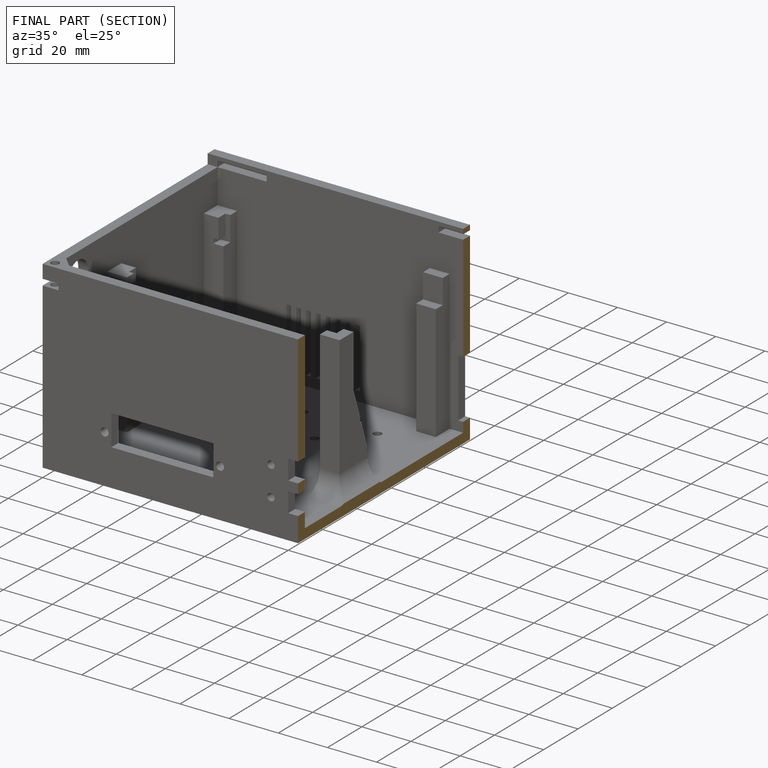
[diagram: finished part — half-section view (interior)]
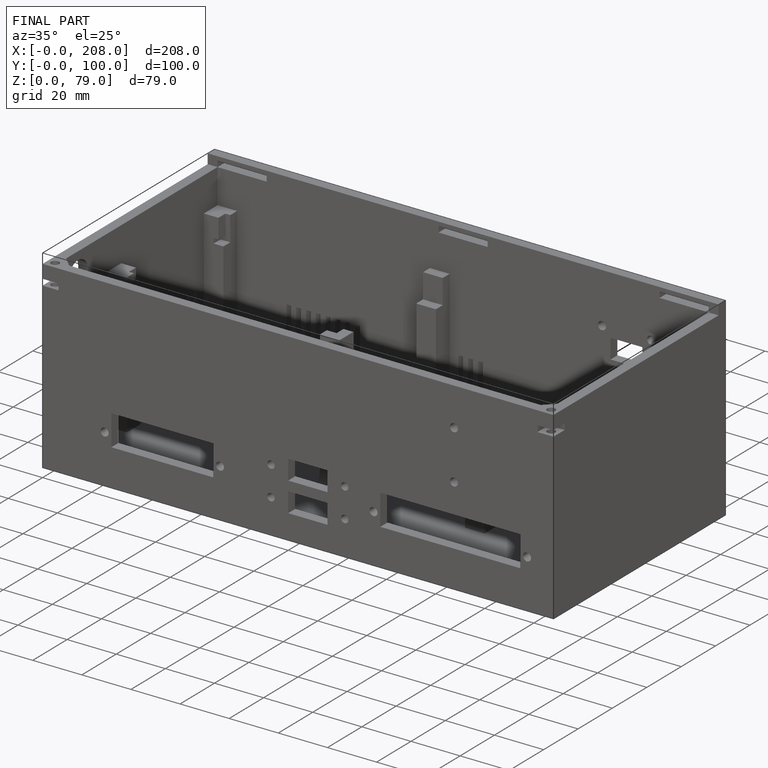
[diagram: finished part — iso view with bounding-box wireframe]
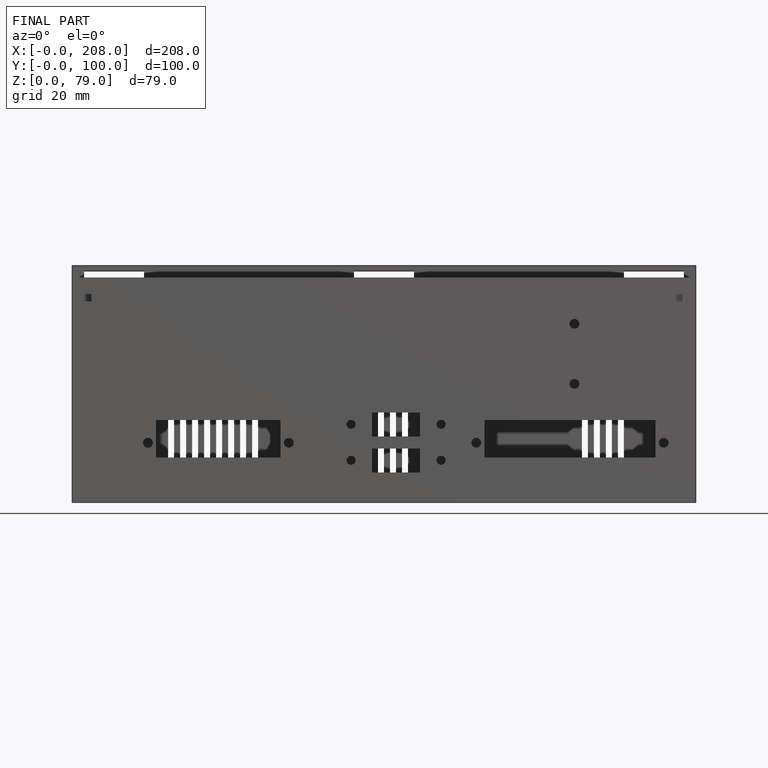
[diagram: finished part — front view with bounding-box wireframe]
